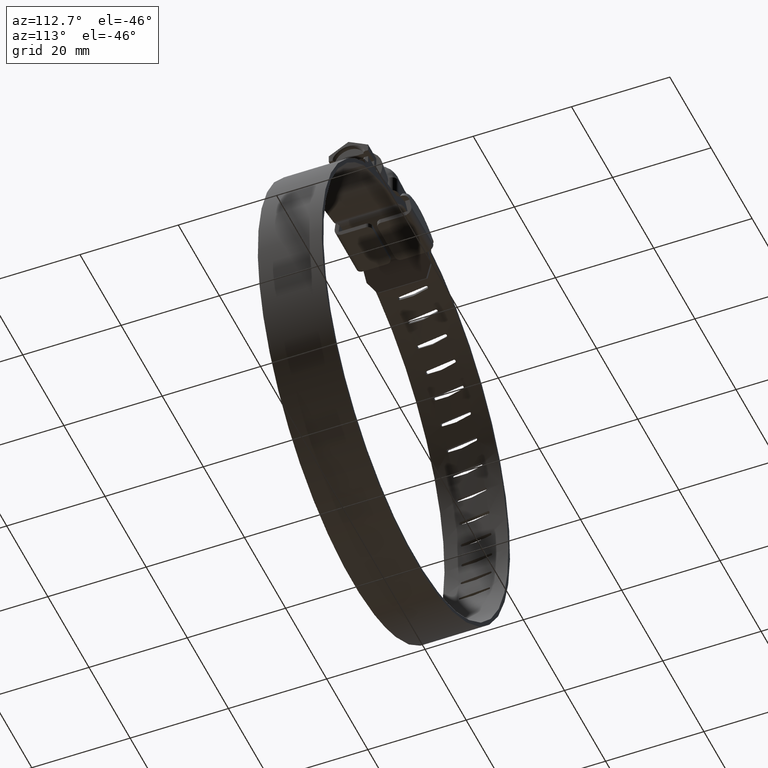
[diagram: clean part render]
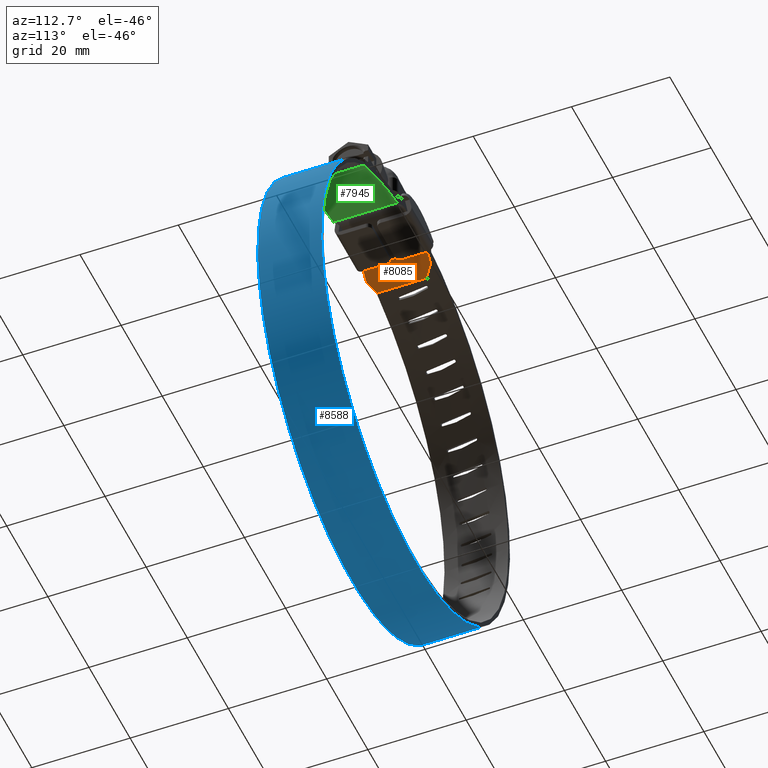
[diagram: same view with three faces highlighted in distinct colors, each labeled with its STEP entity id]
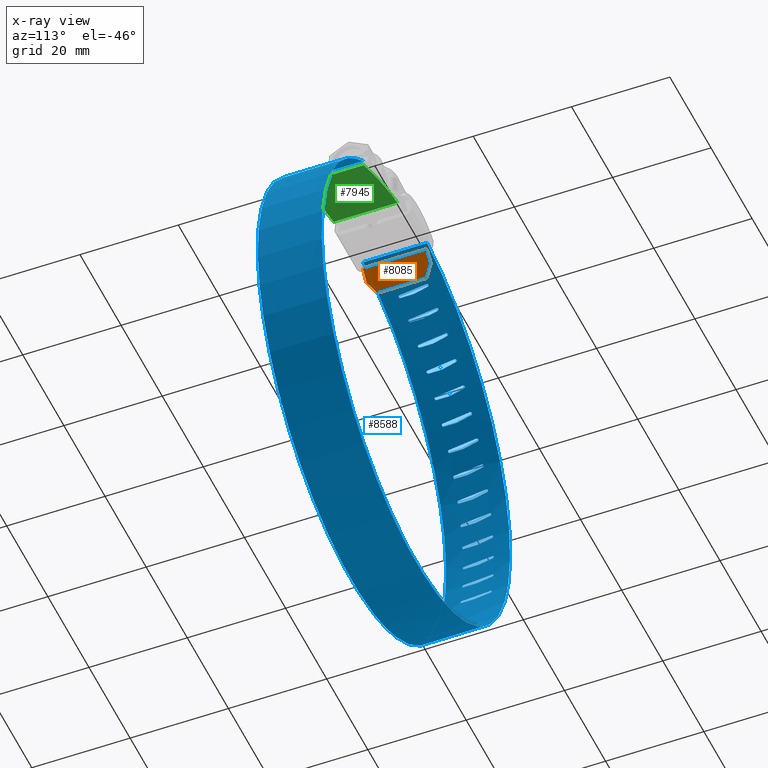
[diagram: x-ray of the same camera — body ghosted, the three highlighted faces saturated]
A machine part, auxiliary view with three faces highlighted in distinct colors.
The next image is the same camera in x-ray (body ghosted, the three faces saturated) — at least one of them is partly hidden behind the body in this view.
Their STEP definitions:

[orange] entity #8085 — the highlighted face is a freeform B-spline surface patch.
#7535=CARTESIAN_POINT('',(-7.114270144539910,6.499999999999880,8.217105914807199));
#7536=VERTEX_POINT('',#7535);
#7542=CARTESIAN_POINT('',(-8.670241379524860,5.0,6.389825554298911));
#7543=VERTEX_POINT('',#7542);
#7544=CARTESIAN_POINT('',(-8.670241379524860,5.0,6.389825554298911));
#7545=CARTESIAN_POINT('',(-7.114270144539910,6.499999999999880,8.217105914807199));
#7546=QUASI_UNIFORM_CURVE('',1,(#7544,#7545),.UNSPECIFIED.,.F.,.U.);
#7547=EDGE_CURVE('',#7543,#7536,#7546,.T.);
#7571=CARTESIAN_POINT('',(-8.670241379524899,-5.0,6.389825554298911));
#7572=VERTEX_POINT('',#7571);
#7578=CARTESIAN_POINT('',(-7.114270144539490,-6.500000000000119,8.217105914807698));
#7579=VERTEX_POINT('',#7578);
#7580=CARTESIAN_POINT('',(-7.114270144539490,-6.500000000000119,8.217105914807698));
#7581=CARTESIAN_POINT('',(-8.670241379524899,-5.0,6.389825554298911));
#7582=QUASI_UNIFORM_CURVE('',1,(#7580,#7581),.UNSPECIFIED.,.F.,.U.);
#7583=EDGE_CURVE('',#7579,#7572,#7582,.T.);
#8037=CARTESIAN_POINT('',(-5.275000379524901,-6.500000000000000,10.377082554298900));
#8038=VERTEX_POINT('',#8037);
#8044=CARTESIAN_POINT('',(-5.275000379524901,6.499999999999840,10.377082554298900));
#8045=VERTEX_POINT('',#8044);
#8046=CARTESIAN_POINT('',(-5.275000379524901,6.499999999999840,10.377082554298900));
#8047=CARTESIAN_POINT('',(-5.275000379524901,-6.500000000000000,10.377082554298900));
#8048=QUASI_UNIFORM_CURVE('',1,(#8046,#8047),.UNSPECIFIED.,.F.,.U.);
#8049=EDGE_CURVE('',#8045,#8038,#8048,.T.);
#8060=CARTESIAN_POINT('',(-5.105408034411355,-7.149349974803596,10.576246108579859));
#8061=CARTESIAN_POINT('',(-8.839833754994270,-7.149349974803596,6.190661964369101));
#8062=CARTESIAN_POINT('',(-5.105408034411355,7.149350323490531,10.576246108579859));
#8063=CARTESIAN_POINT('',(-8.839833754994270,7.149350323490531,6.190661964369101));
#8064=B_SPLINE_SURFACE_WITH_KNOTS('',1,1,((#8060,#8062),(#8061,#8063)),.UNSPECIFIED.,.F.,.F.,.U.,(2,2),(2,2),(0.0,5.760146156869983),(0.0,14.298700298294129),.UNSPECIFIED.);
#8065=CARTESIAN_POINT('',(-8.670241379524860,5.0,6.389825554298911));
#8066=CARTESIAN_POINT('',(-8.670241379524899,-5.0,6.389825554298911));
#8067=QUASI_UNIFORM_CURVE('',1,(#8065,#8066),.UNSPECIFIED.,.F.,.U.);
#8068=EDGE_CURVE('',#7543,#7572,#8067,.T.);
#8069=ORIENTED_EDGE('',*,*,#8068,.F.);
#8070=ORIENTED_EDGE('',*,*,#7547,.T.);
#8071=CARTESIAN_POINT('',(-7.114270144539910,6.499999999999880,8.217105914807199));
#8072=CARTESIAN_POINT('',(-5.275000379524901,6.499999999999840,10.377082554298900));
#8073=QUASI_UNIFORM_CURVE('',1,(#8071,#8072),.UNSPECIFIED.,.F.,.U.);
#8074=EDGE_CURVE('',#7536,#8045,#8073,.T.);
#8075=ORIENTED_EDGE('',*,*,#8074,.T.);
#8076=ORIENTED_EDGE('',*,*,#8049,.T.);
#8077=CARTESIAN_POINT('',(-7.114270144539490,-6.500000000000119,8.217105914807698));
#8078=CARTESIAN_POINT('',(-5.275000379524901,-6.500000000000000,10.377082554298900));
#8079=QUASI_UNIFORM_CURVE('',1,(#8077,#8078),.UNSPECIFIED.,.F.,.U.);
#8080=EDGE_CURVE('',#7579,#8038,#8079,.T.);
#8081=ORIENTED_EDGE('',*,*,#8080,.F.);
#8082=ORIENTED_EDGE('',*,*,#7583,.T.);
#8083=EDGE_LOOP('',(#8069,#8070,#8075,#8076,#8081,#8082));
#8084=FACE_OUTER_BOUND('',#8083,.T.);
#8085=ADVANCED_FACE('',(#8084),#8064,.T.);

[blue] entity #8588 — the highlighted face is a freeform B-spline surface patch.
#3586=CARTESIAN_POINT('',(-44.557706290091303,-2.794078000000000,-43.926794284235349));
#3587=VERTEX_POINT('',#3586);
#3588=CARTESIAN_POINT('',(-44.626148681450132,-3.094077998481925,-43.634705526447839));
#3589=VERTEX_POINT('',#3588);
#3590=CARTESIAN_POINT('',(-44.557706290091303,-2.794078000000000,-43.926794284235349));
#3591=CARTESIAN_POINT('',(-44.557839726433571,-2.862892154006302,-43.927218198110737));
#3592=CARTESIAN_POINT('',(-44.567817137593352,-2.980211349572047,-43.885709375097932));
#3593=CARTESIAN_POINT('',(-44.597378469623990,-3.076525174988309,-43.759067446702467));
#3594=CARTESIAN_POINT('',(-44.617320120407179,-3.094114360650463,-43.672946754939481));
#3595=CARTESIAN_POINT('',(-44.626148681450132,-3.094077998481925,-43.634705526447839));
#3596=B_SPLINE_CURVE_WITH_KNOTS('',3,(#3590,#3591,#3592,#3593,#3594,#3595),.UNSPECIFIED.,.F.,.U.,(4,1,1,4),(0.000001357139979,0.206270349226600,0.353572061855364,0.471429004787711),.UNSPECIFIED.);
#3597=EDGE_CURVE('',#3587,#3589,#3596,.T.);
#3599=CARTESIAN_POINT('',(-44.692676922697551,-2.794078000000000,-43.342172245364203));
#3600=VERTEX_POINT('',#3599);
#3601=CARTESIAN_POINT('',(-44.626148681450132,-3.094077998481925,-43.634705526447839));
#3602=CARTESIAN_POINT('',(-44.634979361459713,-3.094109047666486,-43.596456101009402));
#3603=CARTESIAN_POINT('',(-44.654802867806822,-3.076523191563954,-43.510335022500108));
#3604=CARTESIAN_POINT('',(-44.683758945127487,-2.980216641159307,-43.383510309985247));
#3605=CARTESIAN_POINT('',(-44.692979739401068,-2.862890658802643,-43.341862470521527));
#3606=CARTESIAN_POINT('',(-44.692676922697551,-2.794078000000000,-43.342172245364203));
#3607=B_SPLINE_CURVE_WITH_KNOTS('',3,(#3601,#3602,#3603,#3604,#3605,#3606),.UNSPECIFIED.,.F.,.U.,(4,1,1,4),(0.000001314890863,0.117858600978851,0.265160775048267,0.471430436875556),.UNSPECIFIED.);
#3608=EDGE_CURVE('',#3589,#3600,#3607,.T.);
#3652=CARTESIAN_POINT('',(-44.557706290091247,-0.234600999999998,-43.926794284235200));
#3653=VERTEX_POINT('',#3652);
#3654=CARTESIAN_POINT('',(-44.557706290091247,-0.234600999999998,-43.926794284235200));
#3655=CARTESIAN_POINT('',(-44.557706290091303,-2.794078000000000,-43.926794284235349));
#3656=QUASI_UNIFORM_CURVE('',1,(#3654,#3655),.UNSPECIFIED.,.F.,.U.);
#3657=EDGE_CURVE('',#3653,#3587,#3656,.T.);
#3689=CARTESIAN_POINT('',(-44.564472461432352,0.060369000000009,-43.898297983264449));
#3690=VERTEX_POINT('',#3689);
#3691=CARTESIAN_POINT('',(-44.564472461432352,0.060369000000009,-43.898297983264449));
#3692=CARTESIAN_POINT('',(-44.557706290091247,-0.234600999999998,-43.926794284235200));
#3693=QUASI_UNIFORM_CURVE('',1,(#3691,#3692),.UNSPECIFIED.,.F.,.U.);
#3694=EDGE_CURVE('',#3690,#3653,#3693,.T.);
#3717=CARTESIAN_POINT('',(-44.692676922697302,2.905922000000000,-43.342172245364146));
#3718=VERTEX_POINT('',#3717);
#3719=CARTESIAN_POINT('',(-44.692676922697302,2.905922000000000,-43.342172245364146));
#3720=CARTESIAN_POINT('',(-44.564472461432352,0.060369000000009,-43.898297983264449));
#3721=QUASI_UNIFORM_CURVE('',1,(#3719,#3720),.UNSPECIFIED.,.F.,.U.);
#3722=EDGE_CURVE('',#3718,#3690,#3721,.T.);
#3758=CARTESIAN_POINT('',(-44.819987929631452,2.905922000000000,-42.755781842569412));
#3759=VERTEX_POINT('',#3758);
#3760=CARTESIAN_POINT('',(-44.757292124609030,3.205921998326942,-43.049188493172558));
#3761=VERTEX_POINT('',#3760);
#3762=CARTESIAN_POINT('',(-44.819987929631452,2.905922000000000,-42.755781842569412));
#3763=CARTESIAN_POINT('',(-44.820121197951352,2.945172195160188,-42.755774007936431));
#3764=CARTESIAN_POINT('',(-44.816672679529972,3.033572483954100,-42.773022610363292));
#3765=CARTESIAN_POINT('',(-44.796651421709697,3.163630799676141,-42.867247888536177));
#3766=CARTESIAN_POINT('',(-44.771894311573568,3.206299801759661,-42.981937121857527));
#3767=CARTESIAN_POINT('',(-44.757292124609030,3.205921998326942,-43.049188493172558));
#3768=B_SPLINE_CURVE_WITH_KNOTS('',3,(#3762,#3763,#3764,#3765,#3766,#3767),.UNSPECIFIED.,.F.,.U.,(4,1,1,4),(0.000001542582520,0.117865407427241,0.265175667019685,0.471456950815699),.UNSPECIFIED.);
#3769=EDGE_CURVE('',#3759,#3761,#3768,.T.);
#3771=CARTESIAN_POINT('',(-44.757292124609030,3.205921998326942,-43.049188493172558));
#3772=CARTESIAN_POINT('',(-44.742693566349679,3.206300864167828,-43.116434831477903));
#3773=CARTESIAN_POINT('',(-44.717659583102510,3.163645923422541,-43.231081989773038));
#3774=CARTESIAN_POINT('',(-44.696811521865577,3.033559740623665,-43.325099050308602));
#3775=CARTESIAN_POINT('',(-44.692796516076903,2.945178067281939,-43.342227487728231));
#3776=CARTESIAN_POINT('',(-44.692676922697302,2.905922000000000,-43.342172245364146));
#3777=B_SPLINE_CURVE_WITH_KNOTS('',3,(#3771,#3772,#3773,#3774,#3775,#3776),.UNSPECIFIED.,.F.,.U.,(4,1,1,4),(0.000001587816704,0.206281199230373,0.353590416763379,0.471453546009751),.UNSPECIFIED.);
#3778=EDGE_CURVE('',#3761,#3718,#3777,.T.);
#3816=CARTESIAN_POINT('',(-44.692676922697551,-2.794078000000000,-43.342172245364203));
#3817=CARTESIAN_POINT('',(-44.819987929631452,2.905922000000000,-42.755781842569412));
#3818=QUASI_UNIFORM_CURVE('',1,(#3816,#3817),.UNSPECIFIED.,.F.,.U.);
#3819=EDGE_CURVE('',#3600,#3759,#3818,.T.);
#3849=CARTESIAN_POINT('',(-45.470653798497203,-2.794078000000000,-38.814613520214799));
#3850=VERTEX_POINT('',#3849);
#3851=CARTESIAN_POINT('',(-45.505590846199567,-3.094077998481925,-38.516654452457558));
#3852=VERTEX_POINT('',#3851);
#3853=CARTESIAN_POINT('',(-45.470653798497203,-2.794078000000000,-38.814613520214799));
#3854=CARTESIAN_POINT('',(-45.470777805968112,-2.833332167336461,-38.814660804299493));
#3855=CARTESIAN_POINT('',(-45.473056689368413,-2.921709641239535,-38.797216198282698));
#3856=CARTESIAN_POINT('',(-45.484381030186533,-3.051786938809109,-38.701587072039828));
#3857=CARTESIAN_POINT('',(-45.497802534778053,-3.094450656039216,-38.585022365785271));
#3858=CARTESIAN_POINT('',(-45.505590846199567,-3.094077998481925,-38.516654452457558));
#3859=B_SPLINE_CURVE_WITH_KNOTS('',3,(#3853,#3854,#3855,#3856,#3857,#3858),.UNSPECIFIED.,.F.,.U.,(4,1,1,4),(0.000001357140121,0.117858269252610,0.265159964468981,0.471429004787856),.UNSPECIFIED.);
#3860=EDGE_CURVE('',#3850,#3852,#3859,.T.);
#3862=CARTESIAN_POINT('',(-45.538575726757799,-2.794078000000000,-38.218470406808798));
#3863=VERTEX_POINT('',#3862);
#3864=CARTESIAN_POINT('',(-45.505590846199567,-3.094077998481925,-38.516654452457558));
#3865=CARTESIAN_POINT('',(-45.513381636728717,-3.094451948419861,-38.448286380233910));
#3866=CARTESIAN_POINT('',(-45.526525452265993,-3.051786861260209,-38.331690224483317));
#3867=CARTESIAN_POINT('',(-45.537003316122082,-2.921709875964219,-38.235963865204212));
#3868=CARTESIAN_POINT('',(-45.538707099207592,-2.833332261079000,-38.218453052015207));
#3869=CARTESIAN_POINT('',(-45.538575726757799,-2.794078000000000,-38.218470406808798));
#3870=B_SPLINE_CURVE_WITH_KNOTS('',3,(#3864,#3865,#3866,#3867,#3868,#3869),.UNSPECIFIED.,.F.,.U.,(4,1,1,4),(0.000001314890403,0.206270965495532,0.353573143615438,0.471430436875431),.UNSPECIFIED.);
#3871=EDGE_CURVE('',#3852,#3863,#3870,.T.);
#3915=CARTESIAN_POINT('',(-45.470653798496997,-0.234600999999998,-38.814613520214600));
#3916=VERTEX_POINT('',#3915);
#3917=CARTESIAN_POINT('',(-45.470653798496997,-0.234600999999998,-38.814613520214600));
#3918=CARTESIAN_POINT('',(-45.470653798497203,-2.794078000000000,-38.814613520214799));
#3919=QUASI_UNIFORM_CURVE('',1,(#3917,#3918),.UNSPECIFIED.,.F.,.U.);
#3920=EDGE_CURVE('',#3916,#3850,#3919,.T.);
#3952=CARTESIAN_POINT('',(-45.474150603061886,0.060369000000009,-38.785534445238497));
#3953=VERTEX_POINT('',#3952);
#3954=CARTESIAN_POINT('',(-45.474150603061886,0.060369000000009,-38.785534445238497));
#3955=CARTESIAN_POINT('',(-45.470653798496997,-0.234600999999998,-38.814613520214600));
#3956=QUASI_UNIFORM_CURVE('',1,(#3954,#3955),.UNSPECIFIED.,.F.,.U.);
#3957=EDGE_CURVE('',#3953,#3916,#3956,.T.);
#3980=CARTESIAN_POINT('',(-45.538575726757500,2.905922000000000,-38.218470406808798));
#3981=VERTEX_POINT('',#3980);
#3982=CARTESIAN_POINT('',(-45.538575726757500,2.905922000000000,-38.218470406808798));
#3983=CARTESIAN_POINT('',(-45.474150603061886,0.060369000000009,-38.785534445238497));
#3984=QUASI_UNIFORM_CURVE('',1,(#3982,#3983),.UNSPECIFIED.,.F.,.U.);
#3985=EDGE_CURVE('',#3981,#3953,#3984,.T.);
#4021=CARTESIAN_POINT('',(-45.598687082046098,2.905922000000000,-37.621437391020102));
#4022=VERTEX_POINT('',#4021);
#4023=CARTESIAN_POINT('',(-45.569608870496140,3.205921998326942,-37.920055347945997));
#4024=VERTEX_POINT('',#4023);
#4025=CARTESIAN_POINT('',(-45.598687082046098,2.905922000000000,-37.621437391020102));
#4026=CARTESIAN_POINT('',(-45.598817880303713,2.945183377289395,-37.621422101564100));
#4027=CARTESIAN_POINT('',(-45.597345592672063,3.033564883224150,-37.638935036306407));
#4028=CARTESIAN_POINT('',(-45.588118321416381,3.163636269059645,-37.734834602258573));
#4029=CARTESIAN_POINT('',(-45.576504327131452,3.206297856576922,-37.851581154046983));
#4030=CARTESIAN_POINT('',(-45.569608870496140,3.205921998326942,-37.920055347945997));
#4031=B_SPLINE_CURVE_WITH_KNOTS('',3,(#4025,#4026,#4027,#4028,#4029,#4030),.UNSPECIFIED.,.F.,.U.,(4,1,1,4),(0.000001542582374,0.117865407427106,0.265175667019610,0.471456950815678),.UNSPECIFIED.);
#4032=EDGE_CURVE('',#4022,#4024,#4031,.T.);
#4034=CARTESIAN_POINT('',(-45.569608870496140,3.205921998326942,-37.920055347945997));
#4035=CARTESIAN_POINT('',(-45.565675533749953,3.205953653764115,-37.959122742895943));
#4036=CARTESIAN_POINT('',(-45.556765076892873,3.188388673005786,-38.047048080698659));
#4037=CARTESIAN_POINT('',(-45.543419451214781,3.092061423917047,-38.176448572984469));
#4038=CARTESIAN_POINT('',(-45.538763135022570,2.974741295688775,-38.218859379294862));
#4039=CARTESIAN_POINT('',(-45.538575726757500,2.905922000000000,-38.218470406808798));
#4040=B_SPLINE_CURVE_WITH_KNOTS('',3,(#4034,#4035,#4036,#4037,#4038,#4039),.UNSPECIFIED.,.F.,.U.,(4,1,1,4),(0.000001587816432,0.117864598625198,0.265173748986948,0.471453546009797),.UNSPECIFIED.);
#4041=EDGE_CURVE('',#4024,#3981,#4040,.T.);
#4079=CARTESIAN_POINT('',(-45.538575726757799,-2.794078000000000,-38.218470406808798));
#4080=CARTESIAN_POINT('',(-45.598687082046098,2.905922000000000,-37.621437391020102));
#4081=QUASI_UNIFORM_CURVE('',1,(#4079,#4080),.UNSPECIFIED.,.F.,.U.);
#4082=EDGE_CURVE('',#3863,#4022,#4081,.T.);
#4112=CARTESIAN_POINT('',(-9.815595437436702,-2.794078000000000,11.403879534001140));
#4113=VERTEX_POINT('',#4112);
#4114=CARTESIAN_POINT('',(-9.522356681750138,-3.094077998481925,11.467213849535730));
#4115=VERTEX_POINT('',#4114);
#4116=CARTESIAN_POINT('',(-9.815595437436702,-2.794078000000000,11.403879534001140));
#4117=CARTESIAN_POINT('',(-9.815654259867538,-2.833332984292420,11.403998468861079));
#4118=CARTESIAN_POINT('',(-9.798509310630575,-2.921706977287272,11.407938644072310));
#4119=CARTESIAN_POINT('',(-9.704405890680494,-3.051788566614633,11.428376497311559));
#4120=CARTESIAN_POINT('',(-9.589662059485459,-3.094450108833279,11.452908895771991));
#4121=CARTESIAN_POINT('',(-9.522356681750138,-3.094077998481925,11.467213849535730));
#4122=B_SPLINE_CURVE_WITH_KNOTS('',3,(#4116,#4117,#4118,#4119,#4120,#4121),.UNSPECIFIED.,.F.,.U.,(4,1,1,4),(0.000001357139619,0.117858269252255,0.265159964468806,0.471429004787766),.UNSPECIFIED.);
#4123=EDGE_CURVE('',#4113,#4115,#4122,.T.);
#4125=CARTESIAN_POINT('',(-9.228706876996451,-2.794078000000000,11.528626548491740));
#4126=VERTEX_POINT('',#4125);
#4127=CARTESIAN_POINT('',(-9.522356681750138,-3.094077998481925,11.467213849535730));
#4128=CARTESIAN_POINT('',(-9.455051313088767,-3.094451815589931,11.481521298904671));
#4129=CARTESIAN_POINT('',(-9.340249829386286,-3.051787005387602,11.505780252384071));
#4130=CARTESIAN_POINT('',(-9.245969105891374,-2.921709546931663,11.525384698780041));
#4131=CARTESIAN_POINT('',(-9.228702200926318,-2.833332364234619,11.528758978298590));
#4132=CARTESIAN_POINT('',(-9.228706876996451,-2.794078000000000,11.528626548491740));
#4133=B_SPLINE_CURVE_WITH_KNOTS('',3,(#4127,#4128,#4129,#4130,#4131,#4132),.UNSPECIFIED.,.F.,.U.,(4,1,1,4),(0.000001314890471,0.206270965495571,0.353573143615450,0.471430436875450),.UNSPECIFIED.);
#4134=EDGE_CURVE('',#4115,#4126,#4133,.T.);
#4178=CARTESIAN_POINT('',(-9.815595437436510,-0.234600999999998,11.403879534001121));
#4179=VERTEX_POINT('',#4178);
#4180=CARTESIAN_POINT('',(-9.815595437436510,-0.234600999999998,11.403879534001121));
#4181=CARTESIAN_POINT('',(-9.815595437436702,-2.794078000000000,11.403879534001140));
#4182=QUASI_UNIFORM_CURVE('',1,(#4180,#4181),.UNSPECIFIED.,.F.,.U.);
#4183=EDGE_CURVE('',#4179,#4113,#4182,.T.);
#4215=CARTESIAN_POINT('',(-9.786985390618222,0.060369000000009,11.410147345795099));
#4216=VERTEX_POINT('',#4215);
#4217=CARTESIAN_POINT('',(-9.786985390618222,0.060369000000009,11.410147345795099));
#4218=CARTESIAN_POINT('',(-9.815595437436510,-0.234600999999998,11.403879534001121));
#4219=QUASI_UNIFORM_CURVE('',1,(#4217,#4218),.UNSPECIFIED.,.F.,.U.);
#4220=EDGE_CURVE('',#4216,#4179,#4219,.T.);
#4243=CARTESIAN_POINT('',(-9.228706876996371,2.905922000000000,11.528626548491520));
#4244=VERTEX_POINT('',#4243);
#4245=CARTESIAN_POINT('',(-9.228706876996371,2.905922000000000,11.528626548491520));
#4246=CARTESIAN_POINT('',(-9.786985390618222,0.060369000000009,11.410147345795099));
#4247=QUASI_UNIFORM_CURVE('',1,(#4245,#4246),.UNSPECIFIED.,.F.,.U.);
#4248=EDGE_CURVE('',#4244,#4216,#4247,.T.);
#4284=CARTESIAN_POINT('',(-8.640183900863251,2.905922000000000,11.645684241702179));
#4285=VERTEX_POINT('',#4284);
#4286=CARTESIAN_POINT('',(-8.934640056883641,3.205921998326942,11.588118637672331));
#4287=VERTEX_POINT('',#4286);
#4288=CARTESIAN_POINT('',(-8.640183900863251,2.905922000000000,11.645684241702179));
#4289=CARTESIAN_POINT('',(-8.640178654285601,2.945179612886787,11.645816400622820));
#4290=CARTESIAN_POINT('',(-8.657485050190369,3.033556797416161,11.642669313025490));
#4291=CARTESIAN_POINT('',(-8.752033325341881,3.163650916917425,11.624298082939310));
#4292=CARTESIAN_POINT('',(-8.867146938117090,3.206292263853784,11.601544309719920));
#4293=CARTESIAN_POINT('',(-8.934640056883641,3.205921998326942,11.588118637672331));
#4294=B_SPLINE_CURVE_WITH_KNOTS('',3,(#4288,#4289,#4290,#4291,#4292,#4293),.UNSPECIFIED.,.F.,.U.,(4,1,1,4),(0.000001542582610,0.117865407427318,0.265175667019724,0.471456950815752),.UNSPECIFIED.);
#4295=EDGE_CURVE('',#4285,#4287,#4294,.T.);
#4297=CARTESIAN_POINT('',(-8.934640056883641,3.205921998326942,11.588118637672331));
#4298=CARTESIAN_POINT('',(-9.002129704505382,3.206300737314314,11.574696157239851));
#4299=CARTESIAN_POINT('',(-9.117198184685652,3.163646063825364,11.551666482561661));
#4300=CARTESIAN_POINT('',(-9.211564110072091,3.033559413233235,11.532462551191610));
#4301=CARTESIAN_POINT('',(-9.228760015776667,2.945178169982607,11.528747089698429));
#4302=CARTESIAN_POINT('',(-9.228706876996371,2.905922000000000,11.528626548491520));
#4303=B_SPLINE_CURVE_WITH_KNOTS('',3,(#4297,#4298,#4299,#4300,#4301,#4302),.UNSPECIFIED.,.F.,.U.,(4,1,1,4),(0.000001587816594,0.206281199230282,0.353590416763316,0.471453546009706),.UNSPECIFIED.);
#4304=EDGE_CURVE('',#4287,#4244,#4303,.T.);
#4342=CARTESIAN_POINT('',(-9.228706876996451,-2.794078000000000,11.528626548491740));
#4343=CARTESIAN_POINT('',(-8.640183900863251,2.905922000000000,11.645684241702179));
#4344=QUASI_UNIFORM_CURVE('',1,(#4342,#4343),.UNSPECIFIED.,.F.,.U.);
#4345=EDGE_CURVE('',#4126,#4285,#4344,.T.);
#4375=CARTESIAN_POINT('',(-14.816738594353939,-2.794078000000000,10.005154242478200));
#4376=VERTEX_POINT('',#4375);
#4377=CARTESIAN_POINT('',(-14.532554467770829,-3.094077998481925,10.101277005436749));
#4378=VERTEX_POINT('',#4377);
#4379=CARTESIAN_POINT('',(-14.816738594353939,-2.794078000000000,10.005154242478200));
#4380=CARTESIAN_POINT('',(-14.817165858740990,-2.862895477523781,10.005248950814940));
#4381=CARTESIAN_POINT('',(-14.776823090641830,-2.980204414841385,10.019152592000690));
#4382=CARTESIAN_POINT('',(-14.653573423746820,-3.076534568727518,10.060724040900791));
#4383=CARTESIAN_POINT('',(-14.569788305538300,-3.094105563737815,10.088818832773470));
#4384=CARTESIAN_POINT('',(-14.532554467770829,-3.094077998481925,10.101277005436749));
#4385=B_SPLINE_CURVE_WITH_KNOTS('',3,(#4379,#4380,#4381,#4382,#4383,#4384),.UNSPECIFIED.,.F.,.U.,(4,1,1,4),(0.000001357139850,0.206270349226441,0.353572061855235,0.471429004787551),.UNSPECIFIED.);
#4386=EDGE_CURVE('',#4376,#4378,#4385,.T.);
#4388=CARTESIAN_POINT('',(-14.247744401230261,-2.794078000000000,10.195537036321300));
#4389=VERTEX_POINT('',#4388);
#4390=CARTESIAN_POINT('',(-14.532554467770829,-3.094077998481925,10.101277005436749));
#4391=CARTESIAN_POINT('',(-14.495328547016481,-3.094110323206106,10.113732735903520));
#4392=CARTESIAN_POINT('',(-14.411499246484301,-3.076519138405804,10.141720874294791));
#4393=CARTESIAN_POINT('',(-14.288043607008410,-2.980222168002039,10.182695980805679));
#4394=CARTESIAN_POINT('',(-14.247461554565920,-2.862888128565592,10.195869319111710));
#4395=CARTESIAN_POINT('',(-14.247744401230261,-2.794078000000000,10.195537036321300));
#4396=B_SPLINE_CURVE_WITH_KNOTS('',3,(#4390,#4391,#4392,#4393,#4394,#4395),.UNSPECIFIED.,.F.,.U.,(4,1,1,4),(0.000001314890456,0.117858600978673,0.265160775048251,0.471430436875710),.UNSPECIFIED.);
#4397=EDGE_CURVE('',#4378,#4389,#4396,.T.);
#4441=CARTESIAN_POINT('',(-14.816738594353721,-0.234600999999998,10.005154242478040));
#4442=VERTEX_POINT('',#4441);
#4443=CARTESIAN_POINT('',(-14.816738594353721,-0.234600999999998,10.005154242478040));
#4444=CARTESIAN_POINT('',(-14.816738594353939,-2.794078000000000,10.005154242478200));
#4445=QUASI_UNIFORM_CURVE('',1,(#4443,#4444),.UNSPECIFIED.,.F.,.U.);
#4446=EDGE_CURVE('',#4442,#4376,#4445,.T.);
#4478=CARTESIAN_POINT('',(-14.789021993483940,0.060369000000009,10.014620513119260));
#4479=VERTEX_POINT('',#4478);
#4480=CARTESIAN_POINT('',(-14.789021993483940,0.060369000000009,10.014620513119260));
#4481=CARTESIAN_POINT('',(-14.816738594353721,-0.234600999999998,10.005154242478040));
#4482=QUASI_UNIFORM_CURVE('',1,(#4480,#4481),.UNSPECIFIED.,.F.,.U.);
#4483=EDGE_CURVE('',#4479,#4442,#4482,.T.);
#4506=CARTESIAN_POINT('',(-14.247744401230319,2.905922000000000,10.195537036321481));
#4507=VERTEX_POINT('',#4506);
#4508=CARTESIAN_POINT('',(-14.247744401230319,2.905922000000000,10.195537036321481));
#4509=CARTESIAN_POINT('',(-14.789021993483940,0.060369000000009,10.014620513119260));
#4510=QUASI_UNIFORM_CURVE('',1,(#4508,#4509),.UNSPECIFIED.,.F.,.U.);
#4511=EDGE_CURVE('',#4507,#4479,#4510,.T.);
#4547=CARTESIAN_POINT('',(-13.676255842792900,2.905922000000000,10.378464958060000));
#4548=VERTEX_POINT('',#4547);
#4549=CARTESIAN_POINT('',(-13.962302580767490,3.205921998326942,10.287936010865449));
#4550=VERTEX_POINT('',#4549);
#4551=CARTESIAN_POINT('',(-13.676255842792900,2.905922000000000,10.378464958060000));
#4552=CARTESIAN_POINT('',(-13.676265105966280,2.945187693945669,10.378597044343930));
#4553=CARTESIAN_POINT('',(-13.691241807378420,3.023748261251007,10.374073351158049));
#4554=CARTESIAN_POINT('',(-13.749601182462641,3.115238538020820,10.355707757510579));
#4555=CARTESIAN_POINT('',(-13.840804154553449,3.186204462496803,10.326758656495789));
#4556=CARTESIAN_POINT('',(-13.915532259447700,3.206029316795662,10.302907104191460));
#4557=CARTESIAN_POINT('',(-13.962302580767490,3.205921998326942,10.287936010865449));
#4558=B_SPLINE_CURVE_WITH_KNOTS('',3,(#4551,#4552,#4553,#4554,#4555,#4556,#4557),.UNSPECIFIED.,.F.,.U.,(4,1,1,1,4),(0.000001542582663,0.117865407427442,0.235729135631774,0.324114086693030,0.471456950816151),.UNSPECIFIED.);
#4559=EDGE_CURVE('',#4548,#4550,#4558,.T.);
#4561=CARTESIAN_POINT('',(-13.962302580767490,3.205921998326942,10.287936010865449));
#4562=CARTESIAN_POINT('',(-14.027840120468570,3.206300864167821,10.266959385573401));
#4563=CARTESIAN_POINT('',(-14.139560065026281,3.163645923422581,10.231052210658209));
#4564=CARTESIAN_POINT('',(-14.231146091546989,3.033559740623570,10.201288993843290));
#4565=CARTESIAN_POINT('',(-14.247810851786900,2.945178067281895,10.195650784370841));
#4566=CARTESIAN_POINT('',(-14.247744401230319,2.905922000000000,10.195537036321481));
#4567=B_SPLINE_CURVE_WITH_KNOTS('',3,(#4561,#4562,#4563,#4564,#4565,#4566),.UNSPECIFIED.,.F.,.U.,(4,1,1,4),(0.000001587816696,0.206281199230153,0.353590416763028,0.471453546009324),.UNSPECIFIED.);
#4568=EDGE_CURVE('',#4550,#4507,#4567,.T.);
#4607=CARTESIAN_POINT('',(-14.247744401230261,-2.794078000000000,10.195537036321300));
#4608=CARTESIAN_POINT('',(-13.676255842792900,2.905922000000000,10.378464958060000));
#4609=QUASI_UNIFORM_CURVE('',1,(#4607,#4608),.UNSPECIFIED.,.F.,.U.);
#4610=EDGE_CURVE('',#4389,#4548,#4609,.T.);
#4640=CARTESIAN_POINT('',(-19.627393483097549,-2.794078000000000,8.049274681121400));
#4641=VERTEX_POINT('',#4640);
#4642=CARTESIAN_POINT('',(-19.355917538777419,-3.094077998481925,8.176950109518185));
#4643=VERTEX_POINT('',#4642);
#4644=CARTESIAN_POINT('',(-19.627393483097549,-2.794078000000000,8.049274681121400));
#4645=CARTESIAN_POINT('',(-19.627477671861531,-2.833332167336455,8.049377276879225));
#4646=CARTESIAN_POINT('',(-19.611657639634480,-2.921709641239499,8.057073650633509));
#4647=CARTESIAN_POINT('',(-19.524563543164081,-3.051786938809054,8.098156357955725));
#4648=CARTESIAN_POINT('',(-19.418281180763639,-3.094450656039169,8.147870812315462));
#4649=CARTESIAN_POINT('',(-19.355917538777419,-3.094077998481925,8.176950109518185));
#4650=B_SPLINE_CURVE_WITH_KNOTS('',3,(#4644,#4645,#4646,#4647,#4648,#4649),.UNSPECIFIED.,.F.,.U.,(4,1,1,4),(0.000001357139546,0.117858269252202,0.265159964468755,0.471429004787735),.UNSPECIFIED.);
#4651=EDGE_CURVE('',#4641,#4643,#4650,.T.);
#4653=CARTESIAN_POINT('',(-19.083608810875599,-2.794078000000000,8.302845638165771));
#4654=VERTEX_POINT('',#4653);
#4655=CARTESIAN_POINT('',(-19.355917538777419,-3.094077998481925,8.176950109518185));
#4656=CARTESIAN_POINT('',(-19.293549380444500,-3.094455562425675,8.206034223750072));
#4657=CARTESIAN_POINT('',(-19.187166043690670,-3.051773696034154,8.255487347946772));
#4658=CARTESIAN_POINT('',(-19.099690942397910,-2.921721640471521,8.295807685637112));
#4659=CARTESIAN_POINT('',(-19.083630551977841,-2.833325909720091,8.302977331133151));
#4660=CARTESIAN_POINT('',(-19.083608810875599,-2.794078000000000,8.302845638165771));
#4661=B_SPLINE_CURVE_WITH_KNOTS('',3,(#4655,#4656,#4657,#4658,#4659,#4660),.UNSPECIFIED.,.F.,.U.,(4,1,1,4),(0.000001314890686,0.206270965495635,0.353573143615495,0.471430436875466),.UNSPECIFIED.);
#4662=EDGE_CURVE('',#4643,#4654,#4661,.T.);
#4706=CARTESIAN_POINT('',(-19.627393483097450,-0.234600999999998,8.049274681121599));
#4707=VERTEX_POINT('',#4706);
#4708=CARTESIAN_POINT('',(-19.627393483097450,-0.234600999999998,8.049274681121599));
#4709=CARTESIAN_POINT('',(-19.627393483097549,-2.794078000000000,8.049274681121400));
#4710=QUASI_UNIFORM_CURVE('',1,(#4708,#4709),.UNSPECIFIED.,.F.,.U.);
#4711=EDGE_CURVE('',#4707,#4641,#4710,.T.);
#4743=CARTESIAN_POINT('',(-19.600926660797050,0.060369000000009,8.061817709501769));
#4744=VERTEX_POINT('',#4743);
#4745=CARTESIAN_POINT('',(-19.600926660797050,0.060369000000009,8.061817709501769));
#4746=CARTESIAN_POINT('',(-19.627393483097450,-0.234600999999998,8.049274681121599));
#4747=QUASI_UNIFORM_CURVE('',1,(#4745,#4746),.UNSPECIFIED.,.F.,.U.);
#4748=EDGE_CURVE('',#4744,#4707,#4747,.T.);
#4771=CARTESIAN_POINT('',(-19.083608810875749,2.905922000000000,8.302845638166080));
#4772=VERTEX_POINT('',#4771);
#4773=CARTESIAN_POINT('',(-19.083608810875749,2.905922000000000,8.302845638166080));
#4774=CARTESIAN_POINT('',(-19.600926660797050,0.060369000000009,8.061817709501769));
#4775=QUASI_UNIFORM_CURVE('',1,(#4773,#4774),.UNSPECIFIED.,.F.,.U.);
#4776=EDGE_CURVE('',#4772,#4744,#4775,.T.);
#4812=CARTESIAN_POINT('',(-18.536501891999801,2.905922000000000,8.549292014269581));
#4813=VERTEX_POINT('',#4812);
#4814=CARTESIAN_POINT('',(-18.810461712497279,3.205921998326941,8.426963590186885));
#4815=VERTEX_POINT('',#4814);
#4816=CARTESIAN_POINT('',(-18.536501891999801,2.905922000000000,8.549292014269581));
#4817=CARTESIAN_POINT('',(-18.536257694256069,2.974737675711277,8.549649248133418));
#4818=CARTESIAN_POINT('',(-18.575308443651171,3.092073382684414,8.532480242817179));
#4819=CARTESIAN_POINT('',(-18.694063111012071,3.188373842510772,8.479332733820080));
#4820=CARTESIAN_POINT('',(-18.774667927991619,3.205952762735065,8.443087145896140));
#4821=CARTESIAN_POINT('',(-18.810461712497279,3.205921998326941,8.426963590186885));
#4822=B_SPLINE_CURVE_WITH_KNOTS('',3,(#4816,#4817,#4818,#4819,#4820,#4821),.UNSPECIFIED.,.F.,.U.,(4,1,1,4),(0.000001542582443,0.206282662176512,0.353592981158880,0.471456950815719),.UNSPECIFIED.);
#4823=EDGE_CURVE('',#4813,#4815,#4822,.T.);
#4825=CARTESIAN_POINT('',(-18.810461712497279,3.205921998326941,8.426963590186885));
#4826=CARTESIAN_POINT('',(-18.873203315355870,3.206300884034174,8.398702759445062));
#4827=CARTESIAN_POINT('',(-18.980140333383080,3.163645959328761,8.350379329461633));
#4828=CARTESIAN_POINT('',(-19.067768535086579,3.033559464825129,8.310439513324416));
#4829=CARTESIAN_POINT('',(-19.083687670148858,2.945178124159172,8.302951151181352));
#4830=CARTESIAN_POINT('',(-19.083608810875749,2.905922000000000,8.302845638166080));
#4831=B_SPLINE_CURVE_WITH_KNOTS('',3,(#4825,#4826,#4827,#4828,#4829,#4830),.UNSPECIFIED.,.F.,.U.,(4,1,1,4),(0.000001587816515,0.206281199230311,0.353590416763397,0.471453546009830),.UNSPECIFIED.);
#4832=EDGE_CURVE('',#4815,#4772,#4831,.T.);
#4870=CARTESIAN_POINT('',(-19.083608810875599,-2.794078000000000,8.302845638165771));
#4871=CARTESIAN_POINT('',(-18.536501891999801,2.905922000000000,8.549292014269581));
#4872=QUASI_UNIFORM_CURVE('',1,(#4870,#4871),.UNSPECIFIED.,.F.,.U.);
#4873=EDGE_CURVE('',#4654,#4813,#4872,.T.);
#4903=CARTESIAN_POINT('',(-24.185712935837749,-2.794078000000000,5.561386202130210));
#4904=VERTEX_POINT('',#4903);
#4905=CARTESIAN_POINT('',(-23.930435346881762,-3.094077998481926,5.718972863804430));
#4906=VERTEX_POINT('',#4905);
#4907=CARTESIAN_POINT('',(-24.185712935837749,-2.794078000000000,5.561386202130210));
#4908=CARTESIAN_POINT('',(-24.186152692610250,-2.862896399713463,5.561381062650853));
#4909=CARTESIAN_POINT('',(-24.149965987533289,-2.980203816429248,5.584006902894729));
#4910=CARTESIAN_POINT('',(-24.039234293582950,-3.076533736482824,5.652233392791400));
#4911=CARTESIAN_POINT('',(-23.963908916142358,-3.094106388312477,5.698460343209089));
#4912=CARTESIAN_POINT('',(-23.930435346881762,-3.094077998481926,5.718972863804430));
#4913=B_SPLINE_CURVE_WITH_KNOTS('',3,(#4907,#4908,#4909,#4910,#4911,#4912),.UNSPECIFIED.,.F.,.U.,(4,1,1,4),(0.000001357139854,0.206270349226535,0.353572061855404,0.471429004787756),.UNSPECIFIED.);
#4914=EDGE_CURVE('',#4904,#4906,#4913,.T.);
#4916=CARTESIAN_POINT('',(-23.674128837225300,-2.794078000000000,5.874885340959820));
#4917=VERTEX_POINT('',#4916);
#4918=CARTESIAN_POINT('',(-23.930435346881762,-3.094077998481926,5.718972863804430));
#4919=CARTESIAN_POINT('',(-23.896965453765780,-3.094110323206106,5.739483364828893));
#4920=CARTESIAN_POINT('',(-23.821580654015609,-3.076519138405814,5.785611658585977));
#4921=CARTESIAN_POINT('',(-23.710506567992901,-2.980222168002076,5.853308052036331));
#4922=CARTESIAN_POINT('',(-23.673927987266691,-2.862888128565540,5.875272734019219));
#4923=CARTESIAN_POINT('',(-23.674128837225300,-2.794078000000000,5.874885340959820));
#4924=B_SPLINE_CURVE_WITH_KNOTS('',3,(#4918,#4919,#4920,#4921,#4922,#4923),.UNSPECIFIED.,.F.,.U.,(4,1,1,4),(0.000001314890316,0.117858600978564,0.265160775048134,0.471430436875533),.UNSPECIFIED.);
#4925=EDGE_CURVE('',#4906,#4917,#4924,.T.);
#4970=CARTESIAN_POINT('',(-24.185712935837550,-0.234600999999998,5.561386202130430));
#4971=VERTEX_POINT('',#4970);
#4972=CARTESIAN_POINT('',(-24.185712935837550,-0.234600999999998,5.561386202130430));
#4973=CARTESIAN_POINT('',(-24.185712935837749,-2.794078000000000,5.561386202130210));
#4974=QUASI_UNIFORM_CURVE('',1,(#4972,#4973),.UNSPECIFIED.,.F.,.U.);
#4975=EDGE_CURVE('',#4971,#4904,#4974,.T.);
#5007=CARTESIAN_POINT('',(-24.160836157213801,0.060369000000009,5.576844731456660));
#5008=VERTEX_POINT('',#5007);
#5009=CARTESIAN_POINT('',(-24.160836157213801,0.060369000000009,5.576844731456660));
#5010=CARTESIAN_POINT('',(-24.185712935837550,-0.234600999999998,5.561386202130430));
#5011=QUASI_UNIFORM_CURVE('',1,(#5009,#5010),.UNSPECIFIED.,.F.,.U.);
#5012=EDGE_CURVE('',#5008,#4971,#5011,.T.);
#5035=CARTESIAN_POINT('',(-23.674128837225251,2.905922000000000,5.874885340959811));
#5036=VERTEX_POINT('',#5035);
#5037=CARTESIAN_POINT('',(-23.674128837225251,2.905922000000000,5.874885340959811));
#5038=CARTESIAN_POINT('',(-24.160836157213801,0.060369000000009,5.576844731456660));
#5039=QUASI_UNIFORM_CURVE('',1,(#5037,#5038),.UNSPECIFIED.,.F.,.U.);
#5040=EDGE_CURVE('',#5036,#5008,#5039,.T.);
#5076=CARTESIAN_POINT('',(-23.158437322380799,2.905922000000000,6.181681785681420));
#5077=VERTEX_POINT('',#5076);
#5078=CARTESIAN_POINT('',(-23.416788118872731,3.205921998326942,6.029126574239489));
#5079=VERTEX_POINT('',#5078);
#5080=CARTESIAN_POINT('',(-23.158437322380799,2.905922000000000,6.181681785681420));
#5081=CARTESIAN_POINT('',(-23.158471188530410,2.945171304427190,6.181811239166208));
#5082=CARTESIAN_POINT('',(-23.173737514644149,3.033574947420429,6.173065915623231));
#5083=CARTESIAN_POINT('',(-23.256736894826741,3.163627320385577,6.124183426568494));
#5084=CARTESIAN_POINT('',(-23.357646471480589,3.206304120699984,6.064312722581862));
#5085=CARTESIAN_POINT('',(-23.416788118872731,3.205921998326942,6.029126574239489));
#5086=B_SPLINE_CURVE_WITH_KNOTS('',3,(#5080,#5081,#5082,#5083,#5084,#5085),.UNSPECIFIED.,.F.,.U.,(4,1,1,4),(0.000001542582546,0.117865407427383,0.265175667019958,0.471456950816181),.UNSPECIFIED.);
#5087=EDGE_CURVE('',#5077,#5079,#5086,.T.);
#5089=CARTESIAN_POINT('',(-23.416788118872731,3.205921998326942,6.029126574239489));
#5090=CARTESIAN_POINT('',(-23.450525650705270,3.205957567906563,6.009055495561626));
#5091=CARTESIAN_POINT('',(-23.526454039355951,3.188372647387074,5.963816968412689));
#5092=CARTESIAN_POINT('',(-23.638095704411839,3.092079192743063,5.897031809680387));
#5093=CARTESIAN_POINT('',(-23.674560353182720,2.974733749940557,5.874890902795645));
#5094=CARTESIAN_POINT('',(-23.674128837225251,2.905922000000000,5.874885340959811));
#5095=B_SPLINE_CURVE_WITH_KNOTS('',3,(#5089,#5090,#5091,#5092,#5093,#5094),.UNSPECIFIED.,.F.,.U.,(4,1,1,4),(0.000001587816478,0.117864598625140,0.265173748986685,0.471453546009237),.UNSPECIFIED.);
#5096=EDGE_CURVE('',#5079,#5036,#5095,.T.);
#5134=CARTESIAN_POINT('',(-23.674128837225300,-2.794078000000000,5.874885340959820));
#5135=CARTESIAN_POINT('',(-23.158437322380799,2.905922000000000,6.181681785681420));
#5136=QUASI_UNIFORM_CURVE('',1,(#5134,#5135),.UNSPECIFIED.,.F.,.U.);
#5137=EDGE_CURVE('',#4917,#5077,#5136,.T.);
#5167=CARTESIAN_POINT('',(-28.433093881945450,-2.794078000000000,2.573473817911740));
#5168=VERTEX_POINT('',#5167);
#5169=CARTESIAN_POINT('',(-28.197296570721850,-3.094077998481925,2.758945733254263));
#5170=VERTEX_POINT('',#5169);
#5171=CARTESIAN_POINT('',(-28.433093881945450,-2.794078000000000,2.573473817911740));
#5172=CARTESIAN_POINT('',(-28.433529410252181,-2.862896524547943,2.573419570638004));
#5173=CARTESIAN_POINT('',(-28.400139901759879,-2.980203443059914,2.599993866751181));
#5174=CARTESIAN_POINT('',(-28.297837505987449,-3.076534286121377,2.680321630103444));
#5175=CARTESIAN_POINT('',(-28.228236029485220,-3.094105772693921,2.734773294243456));
#5176=CARTESIAN_POINT('',(-28.197296570721850,-3.094077998481925,2.758945733254263));
#5177=B_SPLINE_CURVE_WITH_KNOTS('',3,(#5171,#5172,#5173,#5174,#5175,#5176),.UNSPECIFIED.,.F.,.U.,(4,1,1,4),(0.000001357139743,0.206270349226600,0.353572061855588,0.471429004788011),.UNSPECIFIED.);
#5178=EDGE_CURVE('',#5168,#5170,#5177,.T.);
#5180=CARTESIAN_POINT('',(-27.960287429781349,-2.794078000000000,2.942870703107065));
#5181=VERTEX_POINT('',#5180);
#5182=CARTESIAN_POINT('',(-28.197296570721850,-3.094077998481925,2.758945733254263));
#5183=CARTESIAN_POINT('',(-28.143073883254051,-3.094451948419855,2.801310693780697));
#5184=CARTESIAN_POINT('',(-28.050526942604790,-3.051786861260205,2.873438962851721));
#5185=CARTESIAN_POINT('',(-27.974381472722481,-2.921709875964194,2.932389695740743));
#5186=CARTESIAN_POINT('',(-27.960341274303659,-2.833332261078971,2.942991784388986));
#5187=CARTESIAN_POINT('',(-27.960287429781349,-2.794078000000000,2.942870703107065));
#5188=B_SPLINE_CURVE_WITH_KNOTS('',3,(#5182,#5183,#5184,#5185,#5186,#5187),.UNSPECIFIED.,.F.,.U.,(4,1,1,4),(0.000001314890558,0.206270965495515,0.353573143615315,0.471430436875226),.UNSPECIFIED.);
#5189=EDGE_CURVE('',#5170,#5181,#5188,.T.);
#5233=CARTESIAN_POINT('',(-28.433093881945499,-0.234600999999998,2.573473817912065));
#5234=VERTEX_POINT('',#5233);
#5235=CARTESIAN_POINT('',(-28.433093881945499,-0.234600999999998,2.573473817912065));
#5236=CARTESIAN_POINT('',(-28.433093881945450,-2.794078000000000,2.573473817911740));
#5237=QUASI_UNIFORM_CURVE('',1,(#5235,#5236),.UNSPECIFIED.,.F.,.U.);
#5238=EDGE_CURVE('',#5234,#5168,#5237,.T.);
#5270=CARTESIAN_POINT('',(-28.410126970044601,0.060369000000009,2.591649108868910));
#5271=VERTEX_POINT('',#5270);
#5272=CARTESIAN_POINT('',(-28.410126970044601,0.060369000000009,2.591649108868910));
#5273=CARTESIAN_POINT('',(-28.433093881945499,-0.234600999999998,2.573473817912065));
#5274=QUASI_UNIFORM_CURVE('',1,(#5272,#5273),.UNSPECIFIED.,.F.,.U.);
#5275=EDGE_CURVE('',#5271,#5234,#5274,.T.);
#5298=CARTESIAN_POINT('',(-27.960287429781751,2.905922000000000,2.942870703107505));
#5299=VERTEX_POINT('',#5298);
#5300=CARTESIAN_POINT('',(-27.960287429781751,2.905922000000000,2.942870703107505));
#5301=CARTESIAN_POINT('',(-28.410126970044601,0.060369000000009,2.591649108868910));
#5302=QUASI_UNIFORM_CURVE('',1,(#5300,#5301),.UNSPECIFIED.,.F.,.U.);
#5303=EDGE_CURVE('',#5299,#5271,#5302,.T.);
#5339=CARTESIAN_POINT('',(-27.482641197935749,2.905922000000000,3.306072952797335));
#5340=VERTEX_POINT('',#5339);
#5341=CARTESIAN_POINT('',(-27.722061538008781,3.205921998326942,3.125252247830027));
#5342=VERTEX_POINT('',#5341);
#5343=CARTESIAN_POINT('',(-27.482641197935749,2.905922000000000,3.306072952797335));
#5344=CARTESIAN_POINT('',(-27.482689919832819,2.945171844800238,3.306197424076503));
#5345=CARTESIAN_POINT('',(-27.496866670397630,3.033573138561018,3.295781206896494));
#5346=CARTESIAN_POINT('',(-27.573800609044380,3.163631020814668,3.237815840491413));
#5347=CARTESIAN_POINT('',(-27.667282244323790,3.206298969704337,3.166907980120640));
#5348=CARTESIAN_POINT('',(-27.722061538008781,3.205921998326942,3.125252247830027));
#5349=B_SPLINE_CURVE_WITH_KNOTS('',3,(#5343,#5344,#5345,#5346,#5347,#5348),.UNSPECIFIED.,.F.,.U.,(4,1,1,4),(0.000001542582696,0.117865407427356,0.265175667019720,0.471456950815702),.UNSPECIFIED.);
#5350=EDGE_CURVE('',#5340,#5342,#5349,.T.);
#5352=CARTESIAN_POINT('',(-27.722061538008781,3.205921998326942,3.125252247830027));
#5353=CARTESIAN_POINT('',(-27.753310949791601,3.205956546506802,3.101490333551251));
#5354=CARTESIAN_POINT('',(-27.823626369018200,3.188376131978909,3.047950134147824));
#5355=CARTESIAN_POINT('',(-27.926997065920379,3.092074042635787,2.968950745317502));
#5356=CARTESIAN_POINT('',(-27.960713989898888,2.974737467628181,2.942829533446096));
#5357=CARTESIAN_POINT('',(-27.960287429781751,2.905922000000000,2.942870703107505));
#5358=B_SPLINE_CURVE_WITH_KNOTS('',3,(#5352,#5353,#5354,#5355,#5356,#5357),.UNSPECIFIED.,.F.,.U.,(4,1,1,4),(0.000001587816422,0.117864598625227,0.265173748986989,0.471453546009809),.UNSPECIFIED.);
#5359=EDGE_CURVE('',#5342,#5299,#5358,.T.);
#5397=CARTESIAN_POINT('',(-27.960287429781349,-2.794078000000000,2.942870703107065));
#5398=CARTESIAN_POINT('',(-27.482641197935749,2.905922000000000,3.306072952797335));
#5399=QUASI_UNIFORM_CURVE('',1,(#5397,#5398),.UNSPECIFIED.,.F.,.U.);
#5400=EDGE_CURVE('',#5181,#5340,#5399,.T.);
#5430=CARTESIAN_POINT('',(-32.314930765984847,-2.794078000000000,-0.876049007471236));
#5431=VERTEX_POINT('',#5430);
#5432=CARTESIAN_POINT('',(-32.101645210789101,-3.094077998481925,-0.665076318940220));
#5433=VERTEX_POINT('',#5432);
#5434=CARTESIAN_POINT('',(-32.314930765984847,-2.794078000000000,-0.876049007471236));
#5435=CARTESIAN_POINT('',(-32.315357687694018,-2.862895219519281,-0.876152543460037));
#5436=CARTESIAN_POINT('',(-32.285189008996497,-2.980204119082669,-0.845967199795135));
#5437=CARTESIAN_POINT('',(-32.192641736099532,-3.076535449557832,-0.754578908267314));
#5438=CARTESIAN_POINT('',(-32.129646874014853,-3.094105560481949,-0.692593350219291));
#5439=CARTESIAN_POINT('',(-32.101645210789101,-3.094077998481925,-0.665076318940220));
#5440=B_SPLINE_CURVE_WITH_KNOTS('',3,(#5434,#5435,#5436,#5437,#5438,#5439),.UNSPECIFIED.,.F.,.U.,(4,1,1,4),(0.000001357139723,0.206270349226639,0.353572061855622,0.471429004788068),.UNSPECIFIED.);
#5441=EDGE_CURVE('',#5431,#5433,#5440,.T.);
#5443=CARTESIAN_POINT('',(-31.886980496492349,-2.794078000000000,-0.455503448891281));
#5444=VERTEX_POINT('',#5443);
#5445=CARTESIAN_POINT('',(-32.101645210789101,-3.094077998481925,-0.665076318940220));
#5446=CARTESIAN_POINT('',(-32.052561508169568,-3.094452203485760,-0.616840180460767));
#5447=CARTESIAN_POINT('',(-31.968792742595600,-3.051781546323355,-0.534716781412326));
#5448=CARTESIAN_POINT('',(-31.899786018590572,-2.921710557902346,-0.467501329989829));
#5449=CARTESIAN_POINT('',(-31.887050506613569,-2.833340700192836,-0.455391958955166));
#5450=CARTESIAN_POINT('',(-31.886980496492349,-2.794078000000000,-0.455503448891281));
#5451=B_SPLINE_CURVE_WITH_KNOTS('',3,(#5445,#5446,#5447,#5448,#5449,#5450),.UNSPECIFIED.,.F.,.U.,(4,1,1,4),(0.000001314890239,0.206270965495321,0.353573143615199,0.471430436875191),.UNSPECIFIED.);
#5452=EDGE_CURVE('',#5433,#5444,#5451,.T.);
#5496=CARTESIAN_POINT('',(-32.314930765984599,-0.234600999999998,-0.876049007471180));
#5497=VERTEX_POINT('',#5496);
#5498=CARTESIAN_POINT('',(-32.314930765984599,-0.234600999999998,-0.876049007471180));
#5499=CARTESIAN_POINT('',(-32.314930765984847,-2.794078000000000,-0.876049007471236));
#5500=QUASI_UNIFORM_CURVE('',1,(#5498,#5499),.UNSPECIFIED.,.F.,.U.);
#5501=EDGE_CURVE('',#5497,#5431,#5500,.T.);
#5533=CARTESIAN_POINT('',(-32.294168990055951,0.060369000000009,-0.855390621669838));
#5534=VERTEX_POINT('',#5533);
#5535=CARTESIAN_POINT('',(-32.294168990055951,0.060369000000009,-0.855390621669838));
#5536=CARTESIAN_POINT('',(-32.314930765984599,-0.234600999999998,-0.876049007471180));
#5537=QUASI_UNIFORM_CURVE('',1,(#5535,#5536),.UNSPECIFIED.,.F.,.U.);
#5538=EDGE_CURVE('',#5534,#5497,#5537,.T.);
#5561=CARTESIAN_POINT('',(-31.886980496492100,2.905922000000000,-0.455503448891448));
#5562=VERTEX_POINT('',#5561);
#5563=CARTESIAN_POINT('',(-31.886980496492100,2.905922000000000,-0.455503448891448));
#5564=CARTESIAN_POINT('',(-32.294168990055951,0.060369000000009,-0.855390621669838));
#5565=QUASI_UNIFORM_CURVE('',1,(#5563,#5564),.UNSPECIFIED.,.F.,.U.);
#5566=EDGE_CURVE('',#5562,#5534,#5565,.T.);
#5602=CARTESIAN_POINT('',(-31.453520305473202,2.905922000000000,-0.040564827191662));
#5603=VERTEX_POINT('',#5602);
#5604=CARTESIAN_POINT('',(-31.670932132127920,3.205921998326942,-0.247326342508515));
#5605=VERTEX_POINT('',#5604);
#5606=CARTESIAN_POINT('',(-31.453520305473202,2.905922000000000,-0.040564827191662));
#5607=CARTESIAN_POINT('',(-31.453406682717230,2.974735141805612,-0.040144015863490));
#5608=CARTESIAN_POINT('',(-31.484493815555659,3.092078911782077,-0.069370695481667));
#5609=CARTESIAN_POINT('',(-31.578688351773479,3.188369790144986,-0.159103693219288));
#5610=CARTESIAN_POINT('',(-31.642574366392900,3.205954037477569,-0.220180146883236));
#5611=CARTESIAN_POINT('',(-31.670932132127920,3.205921998326942,-0.247326342508515));
#5612=B_SPLINE_CURVE_WITH_KNOTS('',3,(#5606,#5607,#5608,#5609,#5610,#5611),.UNSPECIFIED.,.F.,.U.,(4,1,1,4),(0.000001542582614,0.206282662176535,0.353592981158796,0.471456950815580),.UNSPECIFIED.);
#5613=EDGE_CURVE('',#5603,#5605,#5612,.T.);
#5615=CARTESIAN_POINT('',(-31.670932132127920,3.205921998326942,-0.247326342508515));
#5616=CARTESIAN_POINT('',(-31.699296585231210,3.205956822707888,-0.274478636842833));
#5617=CARTESIAN_POINT('',(-31.756011941037769,3.190321210122302,-0.328841472003415));
#5618=CARTESIAN_POINT('',(-31.821967326406590,3.129149963625540,-0.392256002483489));
#5619=CARTESIAN_POINT('',(-31.873019250127729,3.033469211472276,-0.441560378393561));
#5620=CARTESIAN_POINT('',(-31.887166140864959,2.955029326407709,-0.455458476141914));
#5621=CARTESIAN_POINT('',(-31.886980496492100,2.905922000000000,-0.455503448891448));
#5622=B_SPLINE_CURVE_WITH_KNOTS('',3,(#5615,#5616,#5617,#5618,#5619,#5620,#5621),.UNSPECIFIED.,.F.,.U.,(4,1,1,1,4),(0.000001587816775,0.117864598625484,0.235727441360201,0.324111735577643,0.471453546009777),.UNSPECIFIED.);
#5623=EDGE_CURVE('',#5605,#5562,#5622,.T.);
#5661=CARTESIAN_POINT('',(-31.886980496492349,-2.794078000000000,-0.455503448891281));
#5662=CARTESIAN_POINT('',(-31.453520305473202,2.905922000000000,-0.040564827191662));
#5663=QUASI_UNIFORM_CURVE('',1,(#5661,#5662),.UNSPECIFIED.,.F.,.U.);
#5664=EDGE_CURVE('',#5444,#5603,#5663,.T.);
#5694=CARTESIAN_POINT('',(-35.781317572494203,-2.794078000000000,-4.742834212881969));
#5695=VERTEX_POINT('',#5694);
#5696=CARTESIAN_POINT('',(-35.593285833988610,-3.094077998481925,-4.509073076942764));
#5697=VERTEX_POINT('',#5696);
#5698=CARTESIAN_POINT('',(-35.781317572494203,-2.794078000000000,-4.742834212881969));
#5699=CARTESIAN_POINT('',(-35.781730029282350,-2.862895219519253,-4.742985412236004));
#5700=CARTESIAN_POINT('',(-35.755172357117303,-2.980204119082711,-4.709578912932957));
#5701=CARTESIAN_POINT('',(-35.673565439748963,-3.076535449557794,-4.608301429815172));
#5702=CARTESIAN_POINT('',(-35.617992482107731,-3.094105560481922,-4.539583103041415));
#5703=CARTESIAN_POINT('',(-35.593285833988610,-3.094077998481925,-4.509073076942764));
#5704=B_SPLINE_CURVE_WITH_KNOTS('',3,(#5698,#5699,#5700,#5701,#5702,#5703),.UNSPECIFIED.,.F.,.U.,(4,1,1,4),(0.000001357139830,0.206270349226590,0.353572061855522,0.471429004787928),.UNSPECIFIED.);
#5705=EDGE_CURVE('',#5695,#5697,#5704,.T.);
#5707=CARTESIAN_POINT('',(-35.403725337864351,-2.794078000000000,-4.276546636007805));
#5708=VERTEX_POINT('',#5707);
#5709=CARTESIAN_POINT('',(-35.593285833988610,-3.094077998481925,-4.509073076942764));
#5710=CARTESIAN_POINT('',(-35.568586275202222,-3.094114161449225,-4.478571473856954));
#5711=CARTESIAN_POINT('',(-35.512911997348802,-3.076528410094229,-4.409910987242805));
#5712=CARTESIAN_POINT('',(-35.430822095565382,-2.980209128554982,-4.309039671150541));
#5713=CARTESIAN_POINT('',(-35.403663064843613,-2.862893815522345,-4.276111600177386));
#5714=CARTESIAN_POINT('',(-35.403725337864351,-2.794078000000000,-4.276546636007805));
#5715=B_SPLINE_CURVE_WITH_KNOTS('',3,(#5709,#5710,#5711,#5712,#5713,#5714),.UNSPECIFIED.,.F.,.U.,(4,1,1,4),(0.000001314890216,0.117858600978430,0.265160775047934,0.471430436875271),.UNSPECIFIED.);
#5716=EDGE_CURVE('',#5697,#5708,#5715,.T.);
#5760=CARTESIAN_POINT('',(-35.781317572494153,-0.234600999999998,-4.742834212881910));
#5761=VERTEX_POINT('',#5760);
#5762=CARTESIAN_POINT('',(-35.781317572494153,-0.234600999999998,-4.742834212881910));
#5763=CARTESIAN_POINT('',(-35.781317572494203,-2.794078000000000,-4.742834212881969));
#5764=QUASI_UNIFORM_CURVE('',1,(#5762,#5763),.UNSPECIFIED.,.F.,.U.);
#5765=EDGE_CURVE('',#5761,#5695,#5764,.T.);
#5797=CARTESIAN_POINT('',(-35.763027851921500,0.060369000000009,-4.719958322407300));
#5798=VERTEX_POINT('',#5797);
#5799=CARTESIAN_POINT('',(-35.763027851921500,0.060369000000009,-4.719958322407300));
#5800=CARTESIAN_POINT('',(-35.781317572494153,-0.234600999999998,-4.742834212881910));
#5801=QUASI_UNIFORM_CURVE('',1,(#5799,#5800),.UNSPECIFIED.,.F.,.U.);
#5802=EDGE_CURVE('',#5798,#5761,#5801,.T.);
#5825=CARTESIAN_POINT('',(-35.403725337863953,2.905922000000000,-4.276546636008185));
#5826=VERTEX_POINT('',#5825);
#5827=CARTESIAN_POINT('',(-35.403725337863953,2.905922000000000,-4.276546636008185));
#5828=CARTESIAN_POINT('',(-35.763027851921500,0.060369000000009,-4.719958322407300));
#5829=QUASI_UNIFORM_CURVE('',1,(#5827,#5828),.UNSPECIFIED.,.F.,.U.);
#5830=EDGE_CURVE('',#5826,#5798,#5829,.T.);
#5866=CARTESIAN_POINT('',(-35.020023877004348,2.905922000000000,-3.815206212989955));
#5867=VERTEX_POINT('',#5866);
#5868=CARTESIAN_POINT('',(-35.212632081042528,3.205921998326941,-4.045250352934289));
#5869=VERTEX_POINT('',#5868);
#5870=CARTESIAN_POINT('',(-35.020023877004348,2.905922000000000,-3.815206212989955));
#5871=CARTESIAN_POINT('',(-35.019958621826639,2.974735141805624,-3.814775244236562));
#5872=CARTESIAN_POINT('',(-35.047537368028181,3.092078911782145,-3.847333213884181));
#5873=CARTESIAN_POINT('',(-35.130968344447822,3.188369790145012,-3.947152519181023));
#5874=CARTESIAN_POINT('',(-35.187529639704728,3.205954037477576,-4.015068466755821));
#5875=CARTESIAN_POINT('',(-35.212632081042528,3.205921998326941,-4.045250352934289));
#5876=B_SPLINE_CURVE_WITH_KNOTS('',3,(#5870,#5871,#5872,#5873,#5874,#5875),.UNSPECIFIED.,.F.,.U.,(4,1,1,4),(0.000001542582738,0.206282662176601,0.353592981158876,0.471456950815687),.UNSPECIFIED.);
#5877=EDGE_CURVE('',#5867,#5869,#5876,.T.);
#5879=CARTESIAN_POINT('',(-35.212632081042528,3.205921998326941,-4.045250352934289));
#5880=CARTESIAN_POINT('',(-35.256639924252063,3.206302106745433,-4.098160888980156));
#5881=CARTESIAN_POINT('',(-35.331554619249772,3.163637476412179,-4.188452540212988));
#5882=CARTESIAN_POINT('',(-35.392827013374422,3.033564968603344,-4.262789243706103));
#5883=CARTESIAN_POINT('',(-35.403840364753201,2.945182491281916,-4.276483817605152));
#5884=CARTESIAN_POINT('',(-35.403725337863953,2.905922000000000,-4.276546636008185));
#5885=B_SPLINE_CURVE_WITH_KNOTS('',3,(#5879,#5880,#5881,#5882,#5883,#5884),.UNSPECIFIED.,.F.,.U.,(4,1,1,4),(0.000001587816622,0.206281199230330,0.353590416763378,0.471453546009819),.UNSPECIFIED.);
#5886=EDGE_CURVE('',#5869,#5826,#5885,.T.);
#5924=CARTESIAN_POINT('',(-35.403725337864351,-2.794078000000000,-4.276546636007805));
#5925=CARTESIAN_POINT('',(-35.020023877004348,2.905922000000000,-3.815206212989955));
#5926=QUASI_UNIFORM_CURVE('',1,(#5924,#5925),.UNSPECIFIED.,.F.,.U.);
#5927=EDGE_CURVE('',#5708,#5867,#5926,.T.);
#5957=CARTESIAN_POINT('',(-38.787689432127998,-2.794078000000000,-8.977169291584140));
#5958=VERTEX_POINT('',#5957);
#5959=CARTESIAN_POINT('',(-38.627328900617570,-3.094077998481925,-8.723625008875215));
#5960=VERTEX_POINT('',#5959);
#5961=CARTESIAN_POINT('',(-38.787689432127998,-2.794078000000000,-8.977169291584140));
#5962=CARTESIAN_POINT('',(-38.788080926261202,-2.862887882245341,-8.977364379280905));
#5963=CARTESIAN_POINT('',(-38.765481616230232,-2.980222260310451,-8.941175349098645));
#5964=CARTESIAN_POINT('',(-38.695857065912769,-3.076518508220466,-8.831299716659784));
#5965=CARTESIAN_POINT('',(-38.648420324468709,-3.094109472271656,-8.756731720878086));
#5966=CARTESIAN_POINT('',(-38.627328900617570,-3.094077998481925,-8.723625008875215));
#5967=B_SPLINE_CURVE_WITH_KNOTS('',3,(#5961,#5962,#5963,#5964,#5965,#5966),.UNSPECIFIED.,.F.,.U.,(4,1,1,4),(0.000001357139624,0.206270349226399,0.353572061855284,0.471429004787609),.UNSPECIFIED.);
#5968=EDGE_CURVE('',#5958,#5960,#5967,.T.);
#5970=CARTESIAN_POINT('',(-38.465309667120053,-2.794078000000000,-8.471134424096459));
#5971=VERTEX_POINT('',#5970);
#5972=CARTESIAN_POINT('',(-38.627328900617570,-3.094077998481925,-8.723625008875215));
#5973=CARTESIAN_POINT('',(-38.600960002784880,-3.094163293939512,-8.682233610380585));
#5974=CARTESIAN_POINT('',(-38.542826618460552,-3.067063896265279,-8.591147661645472));
#5975=CARTESIAN_POINT('',(-38.480254679253328,-2.951206264258518,-8.493635608776108));
#5976=CARTESIAN_POINT('',(-38.465402949744053,-2.843149899819610,-8.470981727611029));
#5977=CARTESIAN_POINT('',(-38.465309667120053,-2.794078000000000,-8.471134424096459));
#5978=B_SPLINE_CURVE_WITH_KNOTS('',3,(#5972,#5973,#5974,#5975,#5976,#5977),.UNSPECIFIED.,.F.,.U.,(4,1,1,4),(0.000001314890826,0.147335840938063,0.324095903200201,0.471430436875519),.UNSPECIFIED.);
#5979=EDGE_CURVE('',#5960,#5971,#5978,.T.);
#6023=CARTESIAN_POINT('',(-38.787689432128047,-0.234600999999998,-8.977169291583989));
#6024=VERTEX_POINT('',#6023);
#6025=CARTESIAN_POINT('',(-38.787689432128047,-0.234600999999998,-8.977169291583989));
#6026=CARTESIAN_POINT('',(-38.787689432127998,-2.794078000000000,-8.977169291584140));
#6027=QUASI_UNIFORM_CURVE('',1,(#6025,#6026),.UNSPECIFIED.,.F.,.U.);
#6028=EDGE_CURVE('',#6024,#5958,#6027,.T.);
#6060=CARTESIAN_POINT('',(-38.772106904838147,0.060369000000009,-8.952369995487231));
#6061=VERTEX_POINT('',#6060);
#6062=CARTESIAN_POINT('',(-38.772106904838147,0.060369000000009,-8.952369995487231));
#6063=CARTESIAN_POINT('',(-38.787689432128047,-0.234600999999998,-8.977169291583989));
#6064=QUASI_UNIFORM_CURVE('',1,(#6062,#6063),.UNSPECIFIED.,.F.,.U.);
#6065=EDGE_CURVE('',#6061,#6024,#6064,.T.);
#6088=CARTESIAN_POINT('',(-38.465309667119698,2.905922000000000,-8.471134424096640));
#6089=VERTEX_POINT('',#6088);
#6090=CARTESIAN_POINT('',(-38.465309667119698,2.905922000000000,-8.471134424096640));
#6091=CARTESIAN_POINT('',(-38.772106904838147,0.060369000000009,-8.952369995487231));
#6092=QUASI_UNIFORM_CURVE('',1,(#6090,#6091),.UNSPECIFIED.,.F.,.U.);
#6093=EDGE_CURVE('',#6089,#6061,#6092,.T.);
#6129=CARTESIAN_POINT('',(-38.136299913154197,2.905922000000000,-7.969323325403130));
#6130=VERTEX_POINT('',#6129);
#6131=CARTESIAN_POINT('',(-38.301628267908832,3.205921998326941,-8.219692576110543));
#6132=VERTEX_POINT('',#6131);
#6133=CARTESIAN_POINT('',(-38.136299913154197,2.905922000000000,-7.969323325403130));
#6134=CARTESIAN_POINT('',(-38.136282393545763,2.974743657603367,-7.968885445493007));
#6135=CARTESIAN_POINT('',(-38.160004742760577,3.092060386406477,-8.004366282191047));
#6136=CARTESIAN_POINT('',(-38.231591432604347,3.188385121143704,-8.112976011276418));
#6137=CARTESIAN_POINT('',(-38.280101502587577,3.205950926389748,-8.186859426258874));
#6138=CARTESIAN_POINT('',(-38.301628267908832,3.205921998326941,-8.219692576110543));
#6139=B_SPLINE_CURVE_WITH_KNOTS('',3,(#6133,#6134,#6135,#6136,#6137,#6138),.UNSPECIFIED.,.F.,.U.,(4,1,1,4),(0.000001542582440,0.206282662176563,0.353592981158945,0.471456950815790),.UNSPECIFIED.);
#6140=EDGE_CURVE('',#6130,#6132,#6139,.T.);
#6142=CARTESIAN_POINT('',(-38.301628267908832,3.205921998326941,-8.219692576110543));
#6143=CARTESIAN_POINT('',(-38.323155427355907,3.205953682128738,-8.252525965362947));
#6144=CARTESIAN_POINT('',(-38.371567848918517,3.188389589398307,-8.326470321498038));
#6145=CARTESIAN_POINT('',(-38.442627183015468,3.092060647280430,-8.435426684010739));
#6146=CARTESIAN_POINT('',(-38.465700999076802,2.974741324110168,-8.471320145272843));
#6147=CARTESIAN_POINT('',(-38.465309667119698,2.905922000000000,-8.471134424096640));
#6148=B_SPLINE_CURVE_WITH_KNOTS('',3,(#6142,#6143,#6144,#6145,#6146,#6147),.UNSPECIFIED.,.F.,.U.,(4,1,1,4),(0.000001587816727,0.117864598625393,0.265173748987032,0.471453546009692),.UNSPECIFIED.);
#6149=EDGE_CURVE('',#6132,#6089,#6148,.T.);
#6188=CARTESIAN_POINT('',(-38.465309667120053,-2.794078000000000,-8.471134424096459));
#6189=CARTESIAN_POINT('',(-38.136299913154197,2.905922000000000,-7.969323325403130));
#6190=QUASI_UNIFORM_CURVE('',1,(#6188,#6189),.UNSPECIFIED.,.F.,.U.);
#6191=EDGE_CURVE('',#5971,#6130,#6190,.T.);
#6221=CARTESIAN_POINT('',(-41.295395560479051,-2.794078000000000,-13.524616409578780));
#6222=VERTEX_POINT('',#6221);
#6223=CARTESIAN_POINT('',(-41.164767877243818,-3.094077998481925,-13.254548618582460));
#6224=VERTEX_POINT('',#6223);
#6225=CARTESIAN_POINT('',(-41.295395560479051,-2.794078000000000,-13.524616409578780));
#6226=CARTESIAN_POINT('',(-41.295525553039347,-2.833332167336475,-13.524589659405740));
#6227=CARTESIAN_POINT('',(-41.288074563824637,-2.921709641239553,-13.508652584757099));
#6228=CARTESIAN_POINT('',(-41.246243923923153,-3.051786938809053,-13.421915233826869));
#6229=CARTESIAN_POINT('',(-41.194933335068143,-3.094450656039258,-13.316394188527680));
#6230=CARTESIAN_POINT('',(-41.164767877243818,-3.094077998481925,-13.254548618582460));
#6231=B_SPLINE_CURVE_WITH_KNOTS('',3,(#6225,#6226,#6227,#6228,#6229,#6230),.UNSPECIFIED.,.F.,.U.,(4,1,1,4),(0.000001357139835,0.117858269252431,0.265159964468946,0.471429004787951),.UNSPECIFIED.);
#6232=EDGE_CURVE('',#6222,#6224,#6231,.T.);
#6234=CARTESIAN_POINT('',(-41.032372872405652,-2.794078000000000,-12.985339981799260));
#6235=VERTEX_POINT('',#6234);
#6236=CARTESIAN_POINT('',(-41.164767877243818,-3.094077998481925,-13.254548618582460));
#6237=CARTESIAN_POINT('',(-41.134601152861940,-3.094453241393248,-13.192694864263879));
#6238=CARTESIAN_POINT('',(-41.083050367819027,-3.051778450358855,-13.087318922244091));
#6239=CARTESIAN_POINT('',(-41.040439161207672,-2.921715004853694,-13.000924727387950));
#6240=CARTESIAN_POINT('',(-41.032475812213733,-2.833336728012165,-12.985257731190890));
#6241=CARTESIAN_POINT('',(-41.032372872405652,-2.794078000000000,-12.985339981799260));
#6242=B_SPLINE_CURVE_WITH_KNOTS('',3,(#6236,#6237,#6238,#6239,#6240,#6241),.UNSPECIFIED.,.F.,.U.,(4,1,1,4),(0.000001314890221,0.206270965495328,0.353573143615268,0.471430436875291),.UNSPECIFIED.);
#6243=EDGE_CURVE('',#6224,#6235,#6242,.T.);
#6287=CARTESIAN_POINT('',(-41.295395560478987,-0.234600999999998,-13.524616409578520));
#6288=VERTEX_POINT('',#6287);
#6289=CARTESIAN_POINT('',(-41.295395560478987,-0.234600999999998,-13.524616409578520));
#6290=CARTESIAN_POINT('',(-41.295395560479051,-2.794078000000000,-13.524616409578780));
#6291=QUASI_UNIFORM_CURVE('',1,(#6289,#6290),.UNSPECIFIED.,.F.,.U.);
#6292=EDGE_CURVE('',#6288,#6222,#6291,.T.);
#6324=CARTESIAN_POINT('',(-41.282720559940863,0.060369000000009,-13.498212534768500));
#6325=VERTEX_POINT('',#6324);
#6326=CARTESIAN_POINT('',(-41.282720559940863,0.060369000000009,-13.498212534768500));
#6327=CARTESIAN_POINT('',(-41.295395560478987,-0.234600999999998,-13.524616409578520));
#6328=QUASI_UNIFORM_CURVE('',1,(#6326,#6327),.UNSPECIFIED.,.F.,.U.);
#6329=EDGE_CURVE('',#6325,#6288,#6328,.T.);
#6352=CARTESIAN_POINT('',(-41.032372872405347,2.905922000000000,-12.985339981799340));
#6353=VERTEX_POINT('',#6352);
#6354=CARTESIAN_POINT('',(-41.032372872405347,2.905922000000000,-12.985339981799340));
#6355=CARTESIAN_POINT('',(-41.282720559940863,0.060369000000009,-13.498212534768500));
#6356=QUASI_UNIFORM_CURVE('',1,(#6354,#6355),.UNSPECIFIED.,.F.,.U.);
#6357=EDGE_CURVE('',#6353,#6325,#6356,.T.);
#6393=CARTESIAN_POINT('',(-40.762284669698502,2.905922000000000,-12.449509635761601));
#6394=VERTEX_POINT('',#6393);
#6395=CARTESIAN_POINT('',(-40.898207666119589,3.205921998326942,-12.716985177876730));
#6396=VERTEX_POINT('',#6395);
#6397=CARTESIAN_POINT('',(-40.762284669698502,2.905922000000000,-12.449509635761601));
#6398=CARTESIAN_POINT('',(-40.762316713950909,2.974740628716919,-12.449072374933611));
#6399=CARTESIAN_POINT('',(-40.781872007571032,3.092067041503995,-12.487014439190061));
#6400=CARTESIAN_POINT('',(-40.840698529542280,3.188377834417801,-12.603019979144349));
#6401=CARTESIAN_POINT('',(-40.880541080680430,3.205958374653260,-12.681936020112749));
#6402=CARTESIAN_POINT('',(-40.898207666119589,3.205921998326942,-12.716985177876730));
#6403=B_SPLINE_CURVE_WITH_KNOTS('',3,(#6397,#6398,#6399,#6400,#6401,#6402),.UNSPECIFIED.,.F.,.U.,(4,1,1,4),(0.000001542582553,0.206282662176647,0.353592981159082,0.471456950815964),.UNSPECIFIED.);
#6404=EDGE_CURVE('',#6394,#6396,#6403,.T.);
#6406=CARTESIAN_POINT('',(-40.898207666119589,3.205921998326942,-12.716985177876730));
#6407=CARTESIAN_POINT('',(-40.920299003243827,3.206011162567124,-12.760811726077559));
#6408=CARTESIAN_POINT('',(-40.968860484814357,3.178920259527611,-12.857350430919590));
#6409=CARTESIAN_POINT('',(-41.020676241402569,3.063059432102520,-12.960991351494091));
#6410=CARTESIAN_POINT('',(-41.032549715824878,2.954995627094298,-12.985333685311581));
#6411=CARTESIAN_POINT('',(-41.032372872405347,2.905922000000000,-12.985339981799340));
#6412=B_SPLINE_CURVE_WITH_KNOTS('',3,(#6406,#6407,#6408,#6409,#6410,#6411),.UNSPECIFIED.,.F.,.U.,(4,1,1,4),(0.000001587816484,0.147343272208580,0.324111735577316,0.471453546009443),.UNSPECIFIED.);
#6413=EDGE_CURVE('',#6396,#6353,#6412,.T.);
#6451=CARTESIAN_POINT('',(-41.032372872405652,-2.794078000000000,-12.985339981799260));
#6452=CARTESIAN_POINT('',(-40.762284669698502,2.905922000000000,-12.449509635761601));
#6453=QUASI_UNIFORM_CURVE('',1,(#6451,#6452),.UNSPECIFIED.,.F.,.U.);
#6454=EDGE_CURVE('',#6235,#6394,#6453,.T.);
#6484=CARTESIAN_POINT('',(-43.272196163719848,-2.794078000000000,-18.326712274110449));
#6485=VERTEX_POINT('',#6484);
#6486=CARTESIAN_POINT('',(-43.172980715961053,-3.094077998481925,-18.043593044302959));
#6487=VERTEX_POINT('',#6486);
#6488=CARTESIAN_POINT('',(-43.272196163719848,-2.794078000000000,-18.326712274110449));
#6489=CARTESIAN_POINT('',(-43.272329787801823,-2.833325487084736,-18.326704540414870));
#6490=CARTESIAN_POINT('',(-43.266732058679992,-2.921722133424509,-18.310029737876949));
#6491=CARTESIAN_POINT('',(-43.234982623559937,-3.051773541427794,-18.219096100261211));
#6492=CARTESIAN_POINT('',(-43.195952988254021,-3.094453667033187,-18.108461054267199));
#6493=CARTESIAN_POINT('',(-43.172980715961053,-3.094077998481925,-18.043593044302959));
#6494=B_SPLINE_CURVE_WITH_KNOTS('',3,(#6488,#6489,#6490,#6491,#6492,#6493),.UNSPECIFIED.,.F.,.U.,(4,1,1,4),(0.000001357139898,0.117858269252402,0.265159964468812,0.471429004787696),.UNSPECIFIED.);
#6495=EDGE_CURVE('',#6485,#6487,#6494,.T.);
#6497=CARTESIAN_POINT('',(-43.071912048179442,-2.794078000000000,-17.761127379455250));
#6498=VERTEX_POINT('',#6497);
#6499=CARTESIAN_POINT('',(-43.172980715961053,-3.094077998481925,-18.043593044302959));
#6500=CARTESIAN_POINT('',(-43.159875927952420,-3.094107190044857,-18.006585978223299));
#6501=CARTESIAN_POINT('',(-43.130320148164650,-3.076534640137399,-17.923295443915901));
#6502=CARTESIAN_POINT('',(-43.086606677636397,-2.980202755575711,-17.800797571049550));
#6503=CARTESIAN_POINT('',(-43.071998995761618,-2.862897704476608,-17.760697687773600));
#6504=CARTESIAN_POINT('',(-43.071912048179442,-2.794078000000000,-17.761127379455250));
#6505=B_SPLINE_CURVE_WITH_KNOTS('',3,(#6499,#6500,#6501,#6502,#6503,#6504),.UNSPECIFIED.,.F.,.U.,(4,1,1,4),(0.000001314890420,0.117858600978636,0.265160775048151,0.471430436875517),.UNSPECIFIED.);
#6506=EDGE_CURVE('',#6487,#6498,#6505,.T.);
#6551=CARTESIAN_POINT('',(-43.272196163719713,-0.234600999999998,-18.326712274110349));
#6552=VERTEX_POINT('',#6551);
#6553=CARTESIAN_POINT('',(-43.272196163719713,-0.234600999999998,-18.326712274110349));
#6554=CARTESIAN_POINT('',(-43.272196163719848,-2.794078000000000,-18.326712274110449));
#6555=QUASI_UNIFORM_CURVE('',1,(#6553,#6554),.UNSPECIFIED.,.F.,.U.);
#6556=EDGE_CURVE('',#6552,#6485,#6555,.T.);
#6588=CARTESIAN_POINT('',(-43.262591643398750,0.060369000000009,-18.299043276422800));
#6589=VERTEX_POINT('',#6588);
#6590=CARTESIAN_POINT('',(-43.262591643398750,0.060369000000009,-18.299043276422800));
#6591=CARTESIAN_POINT('',(-43.272196163719713,-0.234600999999998,-18.326712274110349));
#6592=QUASI_UNIFORM_CURVE('',1,(#6590,#6591),.UNSPECIFIED.,.F.,.U.);
#6593=EDGE_CURVE('',#6589,#6552,#6592,.T.);
#6616=CARTESIAN_POINT('',(-43.071912048179300,2.905922000000000,-17.761127379455299));
#6617=VERTEX_POINT('',#6616);
#6618=CARTESIAN_POINT('',(-43.071912048179300,2.905922000000000,-17.761127379455299));
#6619=CARTESIAN_POINT('',(-43.262591643398750,0.060369000000009,-18.299043276422800));
#6620=QUASI_UNIFORM_CURVE('',1,(#6618,#6619),.UNSPECIFIED.,.F.,.U.);
#6621=EDGE_CURVE('',#6617,#6589,#6620,.T.);
#6657=CARTESIAN_POINT('',(-42.864217728625349,2.905922000000000,-17.198166575667450));
#6658=VERTEX_POINT('',#6657);
#6659=CARTESIAN_POINT('',(-42.968987901436449,3.205921998326941,-17.479309666414160));
#6660=VERTEX_POINT('',#6659);
#6661=CARTESIAN_POINT('',(-42.864217728625349,2.905922000000000,-17.198166575667450));
#6662=CARTESIAN_POINT('',(-42.864300076713292,2.974735141805607,-17.197738544013230));
#6663=CARTESIAN_POINT('',(-42.879428873563853,3.092078911782089,-17.237635011719810));
#6664=CARTESIAN_POINT('',(-42.924754004787552,3.188369790144990,-17.359578662706141));
#6665=CARTESIAN_POINT('',(-42.955400219334607,3.205954037477553,-17.442479601120802));
#6666=CARTESIAN_POINT('',(-42.968987901436449,3.205921998326941,-17.479309666414160));
#6667=B_SPLINE_CURVE_WITH_KNOTS('',3,(#6661,#6662,#6663,#6664,#6665,#6666),.UNSPECIFIED.,.F.,.U.,(4,1,1,4),(0.000001542582163,0.206282662176375,0.353592981158803,0.471456950815634),.UNSPECIFIED.);
#6668=EDGE_CURVE('',#6658,#6660,#6667,.T.);
#6670=CARTESIAN_POINT('',(-42.968987901436449,3.205921998326941,-17.479309666414160));
#6671=CARTESIAN_POINT('',(-42.982576120891622,3.205956298248838,-17.516140561002992));
#6672=CARTESIAN_POINT('',(-43.013112332394208,3.188376689157086,-17.599076120686838));
#6673=CARTESIAN_POINT('',(-43.057848514639737,3.092073669711565,-17.721246094926489));
#6674=CARTESIAN_POINT('',(-43.072249623849657,2.974736289121688,-17.761391137880260));
#6675=CARTESIAN_POINT('',(-43.071912048179300,2.905922000000000,-17.761127379455299));
#6676=B_SPLINE_CURVE_WITH_KNOTS('',3,(#6670,#6671,#6672,#6673,#6674,#6675),.UNSPECIFIED.,.F.,.U.,(4,1,1,4),(0.000001587816494,0.117864598625282,0.265173748987023,0.471453546009885),.UNSPECIFIED.);
#6677=EDGE_CURVE('',#6660,#6617,#6676,.T.);
#6715=CARTESIAN_POINT('',(-43.071912048179442,-2.794078000000000,-17.761127379455250));
#6716=CARTESIAN_POINT('',(-42.864217728625349,2.905922000000000,-17.198166575667450));
#6717=QUASI_UNIFORM_CURVE('',1,(#6715,#6716),.UNSPECIFIED.,.F.,.U.);
#6718=EDGE_CURVE('',#6498,#6658,#6717,.T.);
#6748=CARTESIAN_POINT('',(-44.692676922697551,-2.794078000000000,-23.321719754635449));
#6749=VERTEX_POINT('',#6748);
#6750=CARTESIAN_POINT('',(-44.626149252849899,-3.094077998481925,-23.029188948556079));
#6751=VERTEX_POINT('',#6750);
#6752=CARTESIAN_POINT('',(-44.692676922697551,-2.794078000000000,-23.321719754635449));
#6753=CARTESIAN_POINT('',(-44.692809381636991,-2.833332930466886,-23.321721970596439));
#6754=CARTESIAN_POINT('',(-44.689135332295947,-2.921706753749491,-23.304521248001759));
#6755=CARTESIAN_POINT('',(-44.667887074773901,-3.051791252872914,-23.210590985676809));
#6756=CARTESIAN_POINT('',(-44.641629603528337,-3.094448135984798,-23.096236325219099));
#6757=CARTESIAN_POINT('',(-44.626149252849899,-3.094077998481925,-23.029188948556079));
#6758=B_SPLINE_CURVE_WITH_KNOTS('',3,(#6752,#6753,#6754,#6755,#6756,#6757),.UNSPECIFIED.,.F.,.U.,(4,1,1,4),(0.000001357139642,0.117858269252275,0.265159964468820,0.471429004787744),.UNSPECIFIED.);
#6759=EDGE_CURVE('',#6749,#6751,#6758,.T.);
#6761=CARTESIAN_POINT('',(-44.557706290091303,-2.794078000000000,-22.737097715764300));
#6762=VERTEX_POINT('',#6761);
#6763=CARTESIAN_POINT('',(-44.626149252849899,-3.094077998481925,-23.029188948556079));
#6764=CARTESIAN_POINT('',(-44.617317921640051,-3.094106420269288,-22.990935836759441));
#6765=CARTESIAN_POINT('',(-44.597381206979563,-3.076536043773544,-22.904836251844849));
#6766=CARTESIAN_POINT('',(-44.567815662300347,-2.980204064216334,-22.778176340775229));
#6767=CARTESIAN_POINT('',(-44.557841353956917,-2.862895453363894,-22.736680803430939));
#6768=CARTESIAN_POINT('',(-44.557706290091303,-2.794078000000000,-22.737097715764300));
#6769=B_SPLINE_CURVE_WITH_KNOTS('',3,(#6763,#6764,#6765,#6766,#6767,#6768),.UNSPECIFIED.,.F.,.U.,(4,1,1,4),(0.000001314890473,0.117858600978677,0.265160775048194,0.471430436875511),.UNSPECIFIED.);
#6770=EDGE_CURVE('',#6751,#6762,#6769,.T.);
#6815=CARTESIAN_POINT('',(-44.692676922697487,-0.234600999999998,-23.321719754635250));
#6816=VERTEX_POINT('',#6815);
#6817=CARTESIAN_POINT('',(-44.692676922697487,-0.234600999999998,-23.321719754635250));
#6818=CARTESIAN_POINT('',(-44.692676922697551,-2.794078000000000,-23.321719754635449));
#6819=QUASI_UNIFORM_CURVE('',1,(#6817,#6818),.UNSPECIFIED.,.F.,.U.);
#6820=EDGE_CURVE('',#6816,#6749,#6819,.T.);
#6852=CARTESIAN_POINT('',(-44.686266361079298,0.060369000000009,-23.293141354691102));
#6853=VERTEX_POINT('',#6852);
#6854=CARTESIAN_POINT('',(-44.686266361079298,0.060369000000009,-23.293141354691102));
#6855=CARTESIAN_POINT('',(-44.692676922697487,-0.234600999999998,-23.321719754635250));
#6856=QUASI_UNIFORM_CURVE('',1,(#6854,#6855),.UNSPECIFIED.,.F.,.U.);
#6857=EDGE_CURVE('',#6853,#6816,#6856,.T.);
#6880=CARTESIAN_POINT('',(-44.557706290091048,2.905922000000000,-22.737097715764349));
#6881=VERTEX_POINT('',#6880);
#6882=CARTESIAN_POINT('',(-44.557706290091048,2.905922000000000,-22.737097715764349));
#6883=CARTESIAN_POINT('',(-44.686266361079298,0.060369000000009,-23.293141354691102));
#6884=QUASI_UNIFORM_CURVE('',1,(#6882,#6883),.UNSPECIFIED.,.F.,.U.);
#6885=EDGE_CURVE('',#6881,#6853,#6884,.T.);
#6921=CARTESIAN_POINT('',(-44.415076031812447,2.905922000000000,-22.154244040816849));
#6922=VERTEX_POINT('',#6921);
#6923=CARTESIAN_POINT('',(-44.487346425430857,3.205921998326941,-22.445440223470062));
#6924=VERTEX_POINT('',#6923);
#6925=CARTESIAN_POINT('',(-44.415076031812447,2.905922000000000,-22.154244040816849));
#6926=CARTESIAN_POINT('',(-44.415206331332442,2.974733885914771,-22.153828207128662));
#6927=CARTESIAN_POINT('',(-44.425721412204503,3.092079577616876,-22.195180581443470));
#6928=CARTESIAN_POINT('',(-44.456950882873919,3.188369775772064,-22.321471766853570));
#6929=CARTESIAN_POINT('',(-44.478015344216722,3.205954029505632,-22.407308638072831));
#6930=CARTESIAN_POINT('',(-44.487346425430857,3.205921998326941,-22.445440223470062));
#6931=B_SPLINE_CURVE_WITH_KNOTS('',3,(#6925,#6926,#6927,#6928,#6929,#6930),.UNSPECIFIED.,.F.,.U.,(4,1,1,4),(0.000001542582743,0.206282662176650,0.353592981158914,0.471456950815707),.UNSPECIFIED.);
#6932=EDGE_CURVE('',#6922,#6924,#6931,.T.);
#6934=CARTESIAN_POINT('',(-44.487346425430857,3.205921998326941,-22.445440223470062));
#6935=CARTESIAN_POINT('',(-44.503704182623082,3.206300864167841,-22.512280418699980));
#6936=CARTESIAN_POINT('',(-44.531461793783343,3.163645923422529,-22.626298777945479));
#6937=CARTESIAN_POINT('',(-44.553938047111551,3.033559740623658,-22.719939940718241));
#6938=CARTESIAN_POINT('',(-44.557837996566988,2.945178067281940,-22.737094940985280));
#6939=CARTESIAN_POINT('',(-44.557706290091048,2.905922000000000,-22.737097715764349));
#6940=B_SPLINE_CURVE_WITH_KNOTS('',3,(#6934,#6935,#6936,#6937,#6938,#6939),.UNSPECIFIED.,.F.,.U.,(4,1,1,4),(0.000001587816558,0.206281199230289,0.353590416763357,0.471453546009805),.UNSPECIFIED.);
#6941=EDGE_CURVE('',#6924,#6881,#6940,.T.);
#6979=CARTESIAN_POINT('',(-44.557706290091303,-2.794078000000000,-22.737097715764300));
#6980=CARTESIAN_POINT('',(-44.415076031812447,2.905922000000000,-22.154244040816849));
#6981=QUASI_UNIFORM_CURVE('',1,(#6979,#6980),.UNSPECIFIED.,.F.,.U.);
#6982=EDGE_CURVE('',#6762,#6922,#6981,.T.);
#7012=CARTESIAN_POINT('',(-45.538575726757799,-2.794078000000000,-28.445421593190801));
#7013=VERTEX_POINT('',#7012);
#7014=CARTESIAN_POINT('',(-45.505591133747807,-3.094077998481925,-28.147240071320670));
#7015=VERTEX_POINT('',#7014);
#7016=CARTESIAN_POINT('',(-45.538575726757799,-2.794078000000000,-28.445421593190801));
#7017=CARTESIAN_POINT('',(-45.538707192529948,-2.833332167336460,-28.445439769776129));
#7018=CARTESIAN_POINT('',(-45.537003485780318,-2.921709641239518,-28.427929630657850));
#7019=CARTESIAN_POINT('',(-45.526525711702590,-3.051786938809038,-28.332204050318559));
#7020=CARTESIAN_POINT('',(-45.513381870429853,-3.094450656039180,-28.215607708324931));
#7021=CARTESIAN_POINT('',(-45.505591133747807,-3.094077998481925,-28.147240071320670));
#7022=B_SPLINE_CURVE_WITH_KNOTS('',3,(#7016,#7017,#7018,#7019,#7020,#7021),.UNSPECIFIED.,.F.,.U.,(4,1,1,4),(0.000001357139565,0.117858269252215,0.265159964468792,0.471429004787757),.UNSPECIFIED.);
#7023=EDGE_CURVE('',#7013,#7015,#7022,.T.);
#7025=CARTESIAN_POINT('',(-45.470653798497203,-2.794078000000000,-27.849278479784850));
#7026=VERTEX_POINT('',#7025);
#7027=CARTESIAN_POINT('',(-45.505591133747807,-3.094077998481925,-28.147240071320670));
#7028=CARTESIAN_POINT('',(-45.501146988492152,-3.094107011017607,-28.108233469795081));
#7029=CARTESIAN_POINT('',(-45.491085050770550,-3.076534633160486,-28.020429372208358));
#7030=CARTESIAN_POINT('',(-45.476047924794898,-2.980204716882050,-27.891237185130660));
#7031=CARTESIAN_POINT('',(-45.470835290543128,-2.862895598870997,-27.848880415606850));
#7032=CARTESIAN_POINT('',(-45.470653798497203,-2.794078000000000,-27.849278479784850));
#7033=B_SPLINE_CURVE_WITH_KNOTS('',3,(#7027,#7028,#7029,#7030,#7031,#7032),.UNSPECIFIED.,.F.,.U.,(4,1,1,4),(0.000001314890170,0.117858600978390,0.265160775048024,0.471430436875493),.UNSPECIFIED.);
#7034=EDGE_CURVE('',#7015,#7026,#7033,.T.);
#7078=CARTESIAN_POINT('',(-45.538575726757699,-0.234600999999998,-28.445421593190598));
#7079=VERTEX_POINT('',#7078);
#7080=CARTESIAN_POINT('',(-45.538575726757699,-0.234600999999998,-28.445421593190598));
#7081=CARTESIAN_POINT('',(-45.538575726757799,-2.794078000000000,-28.445421593190801));
#7082=QUASI_UNIFORM_CURVE('',1,(#7080,#7081),.UNSPECIFIED.,.F.,.U.);
#7083=EDGE_CURVE('',#7079,#7013,#7082,.T.);
#7115=CARTESIAN_POINT('',(-45.535441539872799,0.060369000000009,-28.416301203148599));
#7116=VERTEX_POINT('',#7115);
#7117=CARTESIAN_POINT('',(-45.535441539872799,0.060369000000009,-28.416301203148599));
#7118=CARTESIAN_POINT('',(-45.538575726757699,-0.234600999999998,-28.445421593190598));
#7119=QUASI_UNIFORM_CURVE('',1,(#7117,#7118),.UNSPECIFIED.,.F.,.U.);
#7120=EDGE_CURVE('',#7116,#7079,#7119,.T.);
#7143=CARTESIAN_POINT('',(-45.470653798496812,2.905922000000000,-27.849278479784900));
#7144=VERTEX_POINT('',#7143);
#7145=CARTESIAN_POINT('',(-45.470653798496812,2.905922000000000,-27.849278479784900));
#7146=CARTESIAN_POINT('',(-45.535441539872799,0.060369000000009,-28.416301203148599));
#7147=QUASI_UNIFORM_CURVE('',1,(#7145,#7146),.UNSPECIFIED.,.F.,.U.);
#7148=EDGE_CURVE('',#7144,#7116,#7147,.T.);
#7184=CARTESIAN_POINT('',(-45.394921297263899,2.905922000000000,-27.254025268761701));
#7185=VERTEX_POINT('',#7184);
#7186=CARTESIAN_POINT('',(-45.433762782648600,3.205921998326942,-27.551530841144409));
#7187=VERTEX_POINT('',#7186);
#7188=CARTESIAN_POINT('',(-45.394921297263899,2.905922000000000,-27.254025268761701));
#7189=CARTESIAN_POINT('',(-45.395070054728308,2.955001606047455,-27.253920662793870));
#7190=CARTESIAN_POINT('',(-45.398841669350617,3.063063614406030,-27.280760657921789));
#7191=CARTESIAN_POINT('',(-45.413842280309197,3.178925641524865,-27.395657487666391));
#7192=CARTESIAN_POINT('',(-45.427569362421323,3.206000319583251,-27.502848873878751));
#7193=CARTESIAN_POINT('',(-45.433762782648600,3.205921998326942,-27.551530841144409));
#7194=B_SPLINE_CURVE_WITH_KNOTS('',3,(#7188,#7189,#7190,#7191,#7192,#7193),.UNSPECIFIED.,.F.,.U.,(4,1,1,4),(0.000001542582642,0.147344295178739,0.324114086692768,0.471456950815778),.UNSPECIFIED.);
#7195=EDGE_CURVE('',#7185,#7187,#7194,.T.);
#7197=CARTESIAN_POINT('',(-45.433762782648600,3.205921998326942,-27.551530841144409));
#7198=CARTESIAN_POINT('',(-45.442448733255347,3.206300456499068,-27.619792104436321));
#7199=CARTESIAN_POINT('',(-45.457120944562249,3.163646093409001,-27.736221932706361));
#7200=CARTESIAN_POINT('',(-45.468851887910240,3.033560276260536,-27.831802789538749));
#7201=CARTESIAN_POINT('',(-45.470785060996043,2.945177773065735,-27.849291335975490));
#7202=CARTESIAN_POINT('',(-45.470653798496812,2.905922000000000,-27.849278479784900));
#7203=B_SPLINE_CURVE_WITH_KNOTS('',3,(#7197,#7198,#7199,#7200,#7201,#7202),.UNSPECIFIED.,.F.,.U.,(4,1,1,4),(0.000001587816612,0.206281199230293,0.353590416763316,0.471453546009708),.UNSPECIFIED.);
#7204=EDGE_CURVE('',#7187,#7144,#7203,.T.);
#7242=CARTESIAN_POINT('',(-45.470653798497203,-2.794078000000000,-27.849278479784850));
#7243=CARTESIAN_POINT('',(-45.394921297263899,2.905922000000000,-27.254025268761701));
#7244=QUASI_UNIFORM_CURVE('',1,(#7242,#7243),.UNSPECIFIED.,.F.,.U.);
#7245=EDGE_CURVE('',#7026,#7185,#7244,.T.);
#7275=CARTESIAN_POINT('',(-45.799017456709713,-2.794078000000000,-33.631945999999800));
#7276=VERTEX_POINT('',#7275);
#7277=CARTESIAN_POINT('',(-45.799999999985879,-3.094077998481925,-33.331947270053163));
#7278=VERTEX_POINT('',#7277);
#7279=CARTESIAN_POINT('',(-45.799017456709713,-2.794078000000000,-33.631945999999800));
#7280=CARTESIAN_POINT('',(-45.799242827256599,-2.862890412493657,-33.632317176330872));
#7281=CARTESIAN_POINT('',(-45.799627087847341,-2.980216732535856,-33.589663299826270));
#7282=CARTESIAN_POINT('',(-45.799942503349449,-3.076522562313539,-33.459575481398197));
#7283=CARTESIAN_POINT('',(-45.800000098870292,-3.094108196343743,-33.371202685226130));
#7284=CARTESIAN_POINT('',(-45.799999999985879,-3.094077998481925,-33.331947270053163));
#7285=B_SPLINE_CURVE_WITH_KNOTS('',3,(#7279,#7280,#7281,#7282,#7283,#7284),.UNSPECIFIED.,.F.,.U.,(4,1,1,4),(0.000001357139702,0.206270349226518,0.353572061855425,0.471429004787818),.UNSPECIFIED.);
#7286=EDGE_CURVE('',#7276,#7278,#7285,.T.);
#7288=CARTESIAN_POINT('',(-45.799017456709713,-2.794078000000000,-33.031945999999799));
#7289=VERTEX_POINT('',#7288);
#7290=CARTESIAN_POINT('',(-45.799999999985879,-3.094077998481925,-33.331947270053163));
#7291=CARTESIAN_POINT('',(-45.800000102603121,-3.094109336099981,-33.292692024614432));
#7292=CARTESIAN_POINT('',(-45.799942502327532,-3.076522250293099,-33.204317599144971));
#7293=CARTESIAN_POINT('',(-45.799627095218419,-2.980218983132520,-33.074232903587017));
#7294=CARTESIAN_POINT('',(-45.799242823643162,-2.862889309192548,-33.031574854724340));
#7295=CARTESIAN_POINT('',(-45.799017456709713,-2.794078000000000,-33.031945999999799));
#7296=B_SPLINE_CURVE_WITH_KNOTS('',3,(#7290,#7291,#7292,#7293,#7294,#7295),.UNSPECIFIED.,.F.,.U.,(4,1,1,4),(0.000001314890066,0.117858600978386,0.265160775047990,0.471430436875443),.UNSPECIFIED.);
#7297=EDGE_CURVE('',#7278,#7289,#7296,.T.);
#7341=CARTESIAN_POINT('',(-45.799017456709713,-0.234600999999998,-33.631945999999651));
#7342=VERTEX_POINT('',#7341);
#7343=CARTESIAN_POINT('',(-45.799017456709713,-0.234600999999998,-33.631945999999651));
#7344=CARTESIAN_POINT('',(-45.799017456709713,-2.794078000000000,-33.631945999999800));
#7345=QUASI_UNIFORM_CURVE('',1,(#7343,#7344),.UNSPECIFIED.,.F.,.U.);
#7346=EDGE_CURVE('',#7342,#7276,#7345,.T.);
#7378=CARTESIAN_POINT('',(-45.799199938569387,0.060369000000009,-33.602657999999600));
#7379=VERTEX_POINT('',#7378);
#7380=CARTESIAN_POINT('',(-45.799199938569387,0.060369000000009,-33.602657999999600));
#7381=CARTESIAN_POINT('',(-45.799017456709713,-0.234600999999998,-33.631945999999651));
#7382=QUASI_UNIFORM_CURVE('',1,(#7380,#7381),.UNSPECIFIED.,.F.,.U.);
#7383=EDGE_CURVE('',#7379,#7342,#7382,.T.);
#7406=CARTESIAN_POINT('',(-45.799017456709500,2.905922000000000,-33.031945999999799));
#7407=VERTEX_POINT('',#7406);
#7408=CARTESIAN_POINT('',(-45.799017456709500,2.905922000000000,-33.031945999999799));
#7409=CARTESIAN_POINT('',(-45.799199938569387,0.060369000000009,-33.602657999999600));
#7410=QUASI_UNIFORM_CURVE('',1,(#7408,#7409),.UNSPECIFIED.,.F.,.U.);
#7411=EDGE_CURVE('',#7407,#7379,#7410,.T.);
#7447=CARTESIAN_POINT('',(-45.791156351417897,2.905922000000000,-32.431945999999847));
#7448=VERTEX_POINT('',#7447);
#7449=CARTESIAN_POINT('',(-45.796069571221231,3.205921998326942,-32.731936144599302));
#7450=VERTEX_POINT('',#7449);
#7451=CARTESIAN_POINT('',(-45.791156351417897,2.905922000000000,-32.431945999999847));
#7452=CARTESIAN_POINT('',(-45.791376865901377,2.974742689029398,-32.431568873183757));
#7453=CARTESIAN_POINT('',(-45.792320186462298,3.092060258511503,-32.474233854894173));
#7454=CARTESIAN_POINT('',(-45.794339948089643,3.188387075744069,-32.604306867212387));
#7455=CARTESIAN_POINT('',(-45.795555257644523,3.205949542699533,-32.692674207220932));
#7456=CARTESIAN_POINT('',(-45.796069571221231,3.205921998326942,-32.731936144599302));
#7457=B_SPLINE_CURVE_WITH_KNOTS('',3,(#7451,#7452,#7453,#7454,#7455,#7456),.UNSPECIFIED.,.F.,.U.,(4,1,1,4),(0.000001542582507,0.206282662176563,0.353592981158913,0.471456950815751),.UNSPECIFIED.);
#7458=EDGE_CURVE('',#7448,#7450,#7457,.T.);
#7460=CARTESIAN_POINT('',(-45.796069571221231,3.205921998326942,-32.731936144599302));
#7461=CARTESIAN_POINT('',(-45.796584022437713,3.205954488181756,-32.771193592498967));
#7462=CARTESIAN_POINT('',(-45.797684385509321,3.188387833444116,-32.859571348227803));
#7463=CARTESIAN_POINT('',(-45.799072983948953,3.092060834442372,-32.989641957149409));
#7464=CARTESIAN_POINT('',(-45.799247729033368,2.974742215813192,-33.032313760083163));
#7465=CARTESIAN_POINT('',(-45.799017456709500,2.905922000000000,-33.031945999999799));
#7466=B_SPLINE_CURVE_WITH_KNOTS('',3,(#7460,#7461,#7462,#7463,#7464,#7465),.UNSPECIFIED.,.F.,.U.,(4,1,1,4),(0.000001587816352,0.117864598625102,0.265173748986838,0.471453546009692),.UNSPECIFIED.);
#7467=EDGE_CURVE('',#7450,#7407,#7466,.T.);
#7506=CARTESIAN_POINT('',(-45.799017456709713,-2.794078000000000,-33.031945999999799));
#7507=CARTESIAN_POINT('',(-45.791156351417897,2.905922000000000,-32.431945999999847));
#7508=QUASI_UNIFORM_CURVE('',1,(#7506,#7507),.UNSPECIFIED.,.F.,.U.);
#7509=EDGE_CURVE('',#7289,#7448,#7508,.T.);
#8258=CARTESIAN_POINT('',(25.700311211364451,-6.500000000000000,4.577604295921840));
#8259=VERTEX_POINT('',#8258);
#8268=CARTESIAN_POINT('',(25.700311211364451,6.499999999999840,4.577604295921840));
#8269=VERTEX_POINT('',#8268);
#8270=CARTESIAN_POINT('',(25.700311211364451,6.499999999999840,4.577604295921840));
#8271=CARTESIAN_POINT('',(25.700311211364451,-6.500000000000000,4.577604295921840));
#8272=QUASI_UNIFORM_CURVE('',1,(#8270,#8271),.UNSPECIFIED.,.F.,.U.);
#8273=EDGE_CURVE('',#8269,#8259,#8272,.T.);
#8287=CARTESIAN_POINT('',(24.067028043533210,6.824999999999837,5.634939443306855));
#8288=CARTESIAN_POINT('',(24.067028043533210,-6.833124999999998,5.634939443306855));
#8289=CARTESIAN_POINT('',(57.643044650078551,6.824999999999837,-15.102538650382231));
#8290=CARTESIAN_POINT('',(57.643044650078551,-6.833124999999998,-15.102538650382231));
#8291=CARTESIAN_POINT('',(42.096201091991318,6.824999999999837,-51.374946128100113));
#8292=CARTESIAN_POINT('',(42.096201091991318,-6.833124999999998,-51.374946128100113));
#8293=CARTESIAN_POINT('',(26.549357533904075,6.824999999999837,-87.647353605817983));
#8294=CARTESIAN_POINT('',(26.549357533904075,-6.833124999999998,-87.647353605817983));
#8295=CARTESIAN_POINT('',(-11.622598655131400,6.824999999999837,-77.632681891198445));
#8296=CARTESIAN_POINT('',(-11.622598655131400,-6.833124999999998,-77.632681891198445));
#8297=CARTESIAN_POINT('',(-49.794554844166846,6.824999999999837,-67.618010176578906));
#8298=CARTESIAN_POINT('',(-49.794554844166846,-6.833124999999998,-67.618010176578906));
#8299=CARTESIAN_POINT('',(-45.532060018012871,6.824999999999837,-28.385077241272452));
#8300=CARTESIAN_POINT('',(-45.532060018012871,-6.833124999999998,-28.385077241272452));
#8301=CARTESIAN_POINT('',(-41.269565191858895,6.824999999999837,10.847855694034003));
#8302=CARTESIAN_POINT('',(-41.269565191858895,-6.833124999999998,10.847855694034003));
#8303=CARTESIAN_POINT('',(-1.837535302429753,6.824999999999837,12.431177407524769));
#8304=CARTESIAN_POINT('',(-1.837535302429753,-6.833124999999998,12.431177407524769));
#8312=(BOUNDED_SURFACE()B_SPLINE_SURFACE(1,2,((#8287,#8289,#8291,#8293,#8295,#8297,#8299,#8301,#8303),(#8288,#8290,#8292,#8294,#8296,#8298,#8300,#8302,#8304)),.UNSPECIFIED.,.F.,.F.,.U.)B_SPLINE_SURFACE_WITH_KNOTS((2,2),(3,2,2,2,3),(0.0,13.658124999999840),(0.0,68.040492222869517,136.080984445739010,204.121476668608610,272.161968891478120),.UNSPECIFIED.)GEOMETRIC_REPRESENTATION_ITEM()RATIONAL_B_SPLINE_SURFACE(((1.0,0.757564984384050,1.0,0.757564984384050,1.0,0.757564984384050,1.0,0.757564984384050,1.0),(1.0,0.757564984384050,1.0,0.757564984384050,1.0,0.757564984384050,1.0,0.757564984384050,1.0)))REPRESENTATION_ITEM('')SURFACE());
#8313=CARTESIAN_POINT('',(-10.822120015192690,-6.500000000000000,-77.834998910747004));
#8314=VERTEX_POINT('',#8313);
#8315=CARTESIAN_POINT('',(-10.822120015192690,-6.500000000000000,-77.834998910747004));
#8316=CARTESIAN_POINT('',(-8.644012527305254,-6.500000000000014,-78.364752274578834));
#8317=CARTESIAN_POINT('',(-3.799209864056356,-6.499999999999996,-79.172109853751110));
#8318=CARTESIAN_POINT('',(3.367774522424991,-6.500000000000004,-79.205929160625828));
#8319=CARTESIAN_POINT('',(10.276005440307610,-6.499999999999997,-78.121207820295353));
#8320=CARTESIAN_POINT('',(16.004991765749470,-6.500000000000013,-76.367006522013767));
#8321=CARTESIAN_POINT('',(21.776372436570689,-6.499999999999961,-73.793416839325189));
#8322=CARTESIAN_POINT('',(26.794209914096950,-6.500000000000028,-70.660387345916135));
#8323=CARTESIAN_POINT('',(31.703941306300180,-6.499999999999981,-66.551338100439580));
#8324=CARTESIAN_POINT('',(36.010676141760172,-6.500000000000029,-61.918267774026518));
#8325=CARTESIAN_POINT('',(39.520782331897557,-6.499999999999963,-56.750091162432433));
#8326=CARTESIAN_POINT('',(42.196096044714707,-6.500000000000303,-51.395570459750473));
#8327=CARTESIAN_POINT('',(43.989110862164502,-6.499999999999850,-46.471173152383798));
#8328=CARTESIAN_POINT('',(45.181047120920873,-6.500000000000100,-41.369543594777397));
#8329=CARTESIAN_POINT('',(45.932627660663407,-6.499999999999827,-35.179838377418548));
#8330=CARTESIAN_POINT('',(45.756550675381753,-6.500000000000219,-28.426728609879429));
#8331=CARTESIAN_POINT('',(44.435950067488093,-6.500000000000033,-21.729317155678569));
#8332=CARTESIAN_POINT('',(42.591560555252471,-6.499999999999988,-16.209018160552400));
#8333=CARTESIAN_POINT('',(40.326975021546957,-6.500000000000060,-11.390725202307760));
#8334=CARTESIAN_POINT('',(37.680733002410669,-6.499999999999859,-7.160695336061080));
#8335=CARTESIAN_POINT('',(34.828858717341973,-6.500000000000108,-3.483187750965606));
#8336=CARTESIAN_POINT('',(31.069674088464961,-6.500000000000004,0.513587067315079));
#8337=CARTESIAN_POINT('',(27.830773082099451,-6.499999999999815,3.133558479888518));
#8338=CARTESIAN_POINT('',(25.700311211364451,-6.500000000000000,4.577604295921840));
#8339=B_SPLINE_CURVE_WITH_KNOTS('',3,(#8315,#8316,#8317,#8318,#8319,#8320,#8321,#8322,#8323,#8324,#8325,#8326,#8327,#8328,#8329,#8330,#8331,#8332,#8333,#8334,#8335,#8336,#8337,#8338),.UNSPECIFIED.,.F.,.U.,(4,1,1,1,1,1,1,1,1,1,1,1,1,1,1,1,1,1,1,1,1,4),(0.000000198763985,6.724822852380029,14.695153065777321,21.420090776082560,27.646903259328340,32.628346218343978,40.349589450984453,45.330997304433410,51.806859274445401,59.279066547931677,64.011242112041245,69.739867845410515,74.970391529516121,79.702756180347635,88.420304468397291,95.145237486287897,100.126682924348800,105.855314850460300,111.085862323865300,115.071014812039390,119.803327750746900,127.524504898495710),.UNSPECIFIED.);
#8340=EDGE_CURVE('',#8314,#8259,#8339,.T.);
#8341=ORIENTED_EDGE('',*,*,#8340,.F.);
#8342=CARTESIAN_POINT('',(-5.422404074574910,-6.500000000000000,12.145933612533060));
#8343=VERTEX_POINT('',#8342);
#8344=CARTESIAN_POINT('',(-5.422404074574910,-6.500000000000000,12.145933612533060));
#8345=CARTESIAN_POINT('',(-7.648266840980652,-6.500000000000008,11.880666374571710));
#8346=CARTESIAN_POINT('',(-11.161987752368610,-6.499999999999984,11.197066836674340));
#8347=CARTESIAN_POINT('',(-17.020320226755501,-6.500000000000033,9.327009159110727));
#8348=CARTESIAN_POINT('',(-23.135650322657220,-6.499999999999976,6.472167243017386));
#8349=CARTESIAN_POINT('',(-29.066463882766691,-6.499999999999973,2.295330169513962));
#8350=CARTESIAN_POINT('',(-34.282299124826373,-6.500000000000130,-2.720213959599328));
#8351=CARTESIAN_POINT('',(-38.066721528165111,-6.499999999999924,-7.587712974672347));
#8352=CARTESIAN_POINT('',(-41.493092092986252,-6.500000000000171,-13.579498796019219));
#8353=CARTESIAN_POINT('',(-43.707576155313127,-6.499999999999923,-19.154719597690811));
#8354=CARTESIAN_POINT('',(-45.107176003626371,-6.500000000000033,-24.889876068785920));
#8355=CARTESIAN_POINT('',(-45.778719300272357,-6.499999999999963,-30.000989434795340));
#8356=CARTESIAN_POINT('',(-45.855238345233872,-6.499999999999990,-34.657987864837096));
#8357=CARTESIAN_POINT('',(-45.442891323399337,-6.499999999999972,-39.709264909740831));
#8358=CARTESIAN_POINT('',(-44.543217855404933,-6.500000000000014,-44.451163559051032));
#8359=CARTESIAN_POINT('',(-42.733570437258123,-6.500000000000293,-50.156782872124388));
#8360=CARTESIAN_POINT('',(-40.382924604540463,-6.499999999999331,-55.216081935781069));
#8361=CARTESIAN_POINT('',(-37.175258592050852,-6.500000000000439,-60.270798121436542));
#8362=CARTESIAN_POINT('',(-34.069172102251422,-6.499999999999797,-64.071967473064845));
#8363=CARTESIAN_POINT('',(-30.464522463880680,-6.500000000000084,-67.635405160545417));
#8364=CARTESIAN_POINT('',(-26.969494524770340,-6.499999999999970,-70.456163781681923));
#8365=CARTESIAN_POINT('',(-22.709389065024322,-6.500000000000006,-73.204801719534430));
#8366=CARTESIAN_POINT('',(-17.510647553543070,-6.500000000000012,-75.825739260250742));
#8367=CARTESIAN_POINT('',(-13.323024618357451,-6.499999999999939,-77.227058063312043));
#8368=CARTESIAN_POINT('',(-10.822120015192690,-6.500000000000000,-77.834998910747004));
#8369=B_SPLINE_CURVE_WITH_KNOTS('',3,(#8344,#8345,#8346,#8347,#8348,#8349,#8350,#8351,#8352,#8353,#8354,#8355,#8356,#8357,#8358,#8359,#8360,#8361,#8362,#8363,#8364,#8365,#8366,#8367,#8368),.UNSPECIFIED.,.F.,.U.,(4,1,1,1,1,1,1,1,1,1,1,1,1,1,1,1,1,1,1,1,1,1,4),(0.000000199096235,6.724822852696548,10.709982120281710,18.431224948746550,26.899687363628178,32.379272345497711,40.100503471393473,45.330997304663292,53.052267339034913,58.033638030652192,63.015123104425832,68.494582140034396,71.981577002488677,78.208332911544488,82.940716499860216,89.914736543168061,94.896163756789051,100.873899826879690,104.609980468522810,110.089566200606700,114.323800763184710,119.803327750769990,127.524504898495590),.UNSPECIFIED.);
#8370=EDGE_CURVE('',#8343,#8314,#8369,.T.);
#8371=ORIENTED_EDGE('',*,*,#8370,.F.);
#8372=CARTESIAN_POINT('',(-5.422404074574910,6.499999999999840,12.145933612533060));
#8373=VERTEX_POINT('',#8372);
#8374=CARTESIAN_POINT('',(-5.422404074574910,6.499999999999840,12.145933612533060));
#8375=CARTESIAN_POINT('',(-5.422404074574910,-6.500000000000000,12.145933612533060));
#8376=QUASI_UNIFORM_CURVE('',1,(#8374,#8375),.UNSPECIFIED.,.F.,.U.);
#8377=EDGE_CURVE('',#8373,#8343,#8376,.T.);
#8378=ORIENTED_EDGE('',*,*,#8377,.F.);
#8379=CARTESIAN_POINT('',(-10.822120015192690,6.499999999999840,-77.834998910747004));
#8380=VERTEX_POINT('',#8379);
#8381=CARTESIAN_POINT('',(-5.422404074574910,6.499999999999840,12.145933612533060));
#8382=CARTESIAN_POINT('',(-7.648266529109334,6.499999999999845,11.880665838448641));
#8383=CARTESIAN_POINT('',(-11.161995879074819,6.499999999999824,11.197084408624550));
#8384=CARTESIAN_POINT('',(-16.070263715012260,6.499999999999874,9.630143718771837));
#8385=CARTESIAN_POINT('',(-21.115187527920611,6.499999999999795,7.472557088274773));
#8386=CARTESIAN_POINT('',(-26.903313241963190,6.499999999999844,4.002019735142448));
#8387=CARTESIAN_POINT('',(-32.596299061545629,6.499999999999959,-0.878706142537825));
#8388=CARTESIAN_POINT('',(-37.379620436347651,6.499999999999716,-6.538764319306059));
#8389=CARTESIAN_POINT('',(-41.216431313915031,6.500000000000064,-12.882491293784600));
#8390=CARTESIAN_POINT('',(-43.707527693886661,6.499999999999752,-19.154753791920779));
#8391=CARTESIAN_POINT('',(-45.107184645834558,6.499999999999869,-24.889869973383711));
#8392=CARTESIAN_POINT('',(-45.778719251718272,6.499999999999806,-30.000989464256740));
#8393=CARTESIAN_POINT('',(-45.855238372454693,6.499999999999830,-34.657987861470630));
#8394=CARTESIAN_POINT('',(-45.442891228379303,6.499999999999803,-39.709264879233757));
#8395=CARTESIAN_POINT('',(-44.543222425633182,6.499999999999892,-44.451165516492722));
#8396=CARTESIAN_POINT('',(-42.733527703579092,6.499999999999938,-50.156758433803269));
#8397=CARTESIAN_POINT('',(-39.997166356165103,6.499999999999576,-56.046819936441771));
#8398=CARTESIAN_POINT('',(-35.931867426376392,6.499999999999868,-62.048359297823858));
#8399=CARTESIAN_POINT('',(-31.305988721467099,6.499999999999867,-66.956397751623015));
#8400=CARTESIAN_POINT('',(-26.969484335979171,6.499999999999830,-70.456154321877264));
#8401=CARTESIAN_POINT('',(-22.709389078646051,6.499999999999841,-73.204801728522412));
#8402=CARTESIAN_POINT('',(-17.510647546043909,6.499999999999851,-75.825739255049996));
#8403=CARTESIAN_POINT('',(-13.323024620925670,6.499999999999781,-77.227058065109702));
#8404=CARTESIAN_POINT('',(-10.822120015192690,6.499999999999840,-77.834998910747004));
#8405=B_SPLINE_CURVE_WITH_KNOTS('',3,(#8381,#8382,#8383,#8384,#8385,#8386,#8387,#8388,#8389,#8390,#8391,#8392,#8393,#8394,#8395,#8396,#8397,#8398,#8399,#8400,#8401,#8402,#8403,#8404),.UNSPECIFIED.,.F.,.U.,(4,1,1,1,1,1,1,1,1,1,1,1,1,1,1,1,1,1,1,1,1,4),(0.000000199096235,6.724822852696548,10.709982120281710,15.442365969712609,23.163613097307760,30.884844019663380,37.858859641318382,45.330997304663292,53.052267339034913,58.033638030652192,63.015123104425832,68.494582140034396,71.981577002488677,78.208332911544488,82.940716499860216,89.914736543168061,97.635956447190196,104.609980468522810,110.089566200606700,114.323800763184710,119.803327750769990,127.524504898495590),.UNSPECIFIED.);
#8406=EDGE_CURVE('',#8373,#8380,#8405,.T.);
#8407=ORIENTED_EDGE('',*,*,#8406,.T.);
#8408=CARTESIAN_POINT('',(-10.822120015192690,6.499999999999840,-77.834998910747004));
#8409=CARTESIAN_POINT('',(-8.644012527305254,6.499999999999854,-78.364752274578834));
#8410=CARTESIAN_POINT('',(-3.799209864056357,6.499999999999833,-79.172109853751110));
#8411=CARTESIAN_POINT('',(3.367774522424994,6.499999999999851,-79.205929160625828));
#8412=CARTESIAN_POINT('',(10.276005440307600,6.499999999999835,-78.121207820295353));
#8413=CARTESIAN_POINT('',(16.004991765749480,6.499999999999853,-76.367006522013767));
#8414=CARTESIAN_POINT('',(21.776372436570679,6.499999999999801,-73.793416839325204));
#8415=CARTESIAN_POINT('',(26.794209914096939,6.499999999999869,-70.660387345916092));
#8416=CARTESIAN_POINT('',(31.703941306300209,6.499999999999816,-66.551338100439580));
#8417=CARTESIAN_POINT('',(36.010676141760158,6.499999999999866,-61.918267774026518));
#8418=CARTESIAN_POINT('',(39.520782331897529,6.499999999999807,-56.750091162432447));
#8419=CARTESIAN_POINT('',(42.196096044714722,6.500000000000139,-51.395570459750473));
#8420=CARTESIAN_POINT('',(43.989110862164488,6.499999999999691,-46.471173152383813));
#8421=CARTESIAN_POINT('',(45.181047120920873,6.499999999999941,-41.369543594777397));
#8422=CARTESIAN_POINT('',(45.932627660663400,6.499999999999664,-35.179838377418562));
#8423=CARTESIAN_POINT('',(45.756550675381732,6.500000000000056,-28.426728609879429));
#8424=CARTESIAN_POINT('',(44.435950067488101,6.499999999999876,-21.729317155678590));
#8425=CARTESIAN_POINT('',(42.591560555252428,6.499999999999825,-16.209018160552411));
#8426=CARTESIAN_POINT('',(40.326975021546971,6.499999999999900,-11.390725202307760));
#8427=CARTESIAN_POINT('',(37.680733002410662,6.499999999999698,-7.160695336061078));
#8428=CARTESIAN_POINT('',(34.828858717341987,6.499999999999948,-3.483187750965607));
#8429=CARTESIAN_POINT('',(31.069674088464950,6.499999999999841,0.513587067315080));
#8430=CARTESIAN_POINT('',(27.830773082099451,6.499999999999663,3.133558479888518));
#8431=CARTESIAN_POINT('',(25.700311211364451,6.499999999999840,4.577604295921840));
#8432=B_SPLINE_CURVE_WITH_KNOTS('',3,(#8408,#8409,#8410,#8411,#8412,#8413,#8414,#8415,#8416,#8417,#8418,#8419,#8420,#8421,#8422,#8423,#8424,#8425,#8426,#8427,#8428,#8429,#8430,#8431),.UNSPECIFIED.,.F.,.U.,(4,1,1,1,1,1,1,1,1,1,1,1,1,1,1,1,1,1,1,1,1,4),(0.000000198763985,6.724822852380029,14.695153065777321,21.420090776082560,27.646903259328340,32.628346218343978,40.349589450984453,45.330997304433410,51.806859274445401,59.279066547931677,64.011242112041245,69.739867845410515,74.970391529516121,79.702756180347635,88.420304468397291,95.145237486287897,100.126682924348800,105.855314850460300,111.085862323865300,115.071014812039390,119.803327750746900,127.524504898495710),.UNSPECIFIED.);
#8433=EDGE_CURVE('',#8380,#8269,#8432,.T.);
#8434=ORIENTED_EDGE('',*,*,#8433,.T.);
#8435=ORIENTED_EDGE('',*,*,#8273,.T.);
#8436=EDGE_LOOP('',(#8341,#8371,#8378,#8407,#8434,#8435));
#8437=FACE_OUTER_BOUND('',#8436,.T.);
#8438=ORIENTED_EDGE('',*,*,#4082,.F.);
#8439=ORIENTED_EDGE('',*,*,#3871,.F.);
#8440=ORIENTED_EDGE('',*,*,#3860,.F.);
#8441=ORIENTED_EDGE('',*,*,#3920,.F.);
#8442=ORIENTED_EDGE('',*,*,#3957,.F.);
#8443=ORIENTED_EDGE('',*,*,#3985,.F.);
#8444=ORIENTED_EDGE('',*,*,#4041,.F.);
#8445=ORIENTED_EDGE('',*,*,#4032,.F.);
#8446=EDGE_LOOP('',(#8438,#8439,#8440,#8441,#8442,#8443,#8444,#8445));
#8447=FACE_BOUND('',#8446,.T.);
#8448=ORIENTED_EDGE('',*,*,#4345,.F.);
#8449=ORIENTED_EDGE('',*,*,#4134,.F.);
#8450=ORIENTED_EDGE('',*,*,#4123,.F.);
#8451=ORIENTED_EDGE('',*,*,#4183,.F.);
#8452=ORIENTED_EDGE('',*,*,#4220,.F.);
#8453=ORIENTED_EDGE('',*,*,#4248,.F.);
#8454=ORIENTED_EDGE('',*,*,#4304,.F.);
#8455=ORIENTED_EDGE('',*,*,#4295,.F.);
#8456=EDGE_LOOP('',(#8448,#8449,#8450,#8451,#8452,#8453,#8454,#8455));
#8457=FACE_BOUND('',#8456,.T.);
#8458=ORIENTED_EDGE('',*,*,#4610,.F.);
#8459=ORIENTED_EDGE('',*,*,#4397,.F.);
#8460=ORIENTED_EDGE('',*,*,#4386,.F.);
#8461=ORIENTED_EDGE('',*,*,#4446,.F.);
#8462=ORIENTED_EDGE('',*,*,#4483,.F.);
#8463=ORIENTED_EDGE('',*,*,#4511,.F.);
#8464=ORIENTED_EDGE('',*,*,#4568,.F.);
#8465=ORIENTED_EDGE('',*,*,#4559,.F.);
#8466=EDGE_LOOP('',(#8458,#8459,#8460,#8461,#8462,#8463,#8464,#8465));
#8467=FACE_BOUND('',#8466,.T.);
#8468=ORIENTED_EDGE('',*,*,#4873,.F.);
#8469=ORIENTED_EDGE('',*,*,#4662,.F.);
#8470=ORIENTED_EDGE('',*,*,#4651,.F.);
#8471=ORIENTED_EDGE('',*,*,#4711,.F.);
#8472=ORIENTED_EDGE('',*,*,#4748,.F.);
#8473=ORIENTED_EDGE('',*,*,#4776,.F.);
#8474=ORIENTED_EDGE('',*,*,#4832,.F.);
#8475=ORIENTED_EDGE('',*,*,#4823,.F.);
#8476=EDGE_LOOP('',(#8468,#8469,#8470,#8471,#8472,#8473,#8474,#8475));
#8477=FACE_BOUND('',#8476,.T.);
#8478=ORIENTED_EDGE('',*,*,#5137,.F.);
#8479=ORIENTED_EDGE('',*,*,#4925,.F.);
#8480=ORIENTED_EDGE('',*,*,#4914,.F.);
#8481=ORIENTED_EDGE('',*,*,#4975,.F.);
#8482=ORIENTED_EDGE('',*,*,#5012,.F.);
#8483=ORIENTED_EDGE('',*,*,#5040,.F.);
#8484=ORIENTED_EDGE('',*,*,#5096,.F.);
#8485=ORIENTED_EDGE('',*,*,#5087,.F.);
#8486=EDGE_LOOP('',(#8478,#8479,#8480,#8481,#8482,#8483,#8484,#8485));
#8487=FACE_BOUND('',#8486,.T.);
#8488=ORIENTED_EDGE('',*,*,#5400,.F.);
#8489=ORIENTED_EDGE('',*,*,#5189,.F.);
#8490=ORIENTED_EDGE('',*,*,#5178,.F.);
#8491=ORIENTED_EDGE('',*,*,#5238,.F.);
#8492=ORIENTED_EDGE('',*,*,#5275,.F.);
#8493=ORIENTED_EDGE('',*,*,#5303,.F.);
#8494=ORIENTED_EDGE('',*,*,#5359,.F.);
#8495=ORIENTED_EDGE('',*,*,#5350,.F.);
#8496=EDGE_LOOP('',(#8488,#8489,#8490,#8491,#8492,#8493,#8494,#8495));
#8497=FACE_BOUND('',#8496,.T.);
#8498=ORIENTED_EDGE('',*,*,#5664,.F.);
#8499=ORIENTED_EDGE('',*,*,#5452,.F.);
#8500=ORIENTED_EDGE('',*,*,#5441,.F.);
#8501=ORIENTED_EDGE('',*,*,#5501,.F.);
#8502=ORIENTED_EDGE('',*,*,#5538,.F.);
#8503=ORIENTED_EDGE('',*,*,#5566,.F.);
#8504=ORIENTED_EDGE('',*,*,#5623,.F.);
#8505=ORIENTED_EDGE('',*,*,#5613,.F.);
#8506=EDGE_LOOP('',(#8498,#8499,#8500,#8501,#8502,#8503,#8504,#8505));
#8507=FACE_BOUND('',#8506,.T.);
#8508=ORIENTED_EDGE('',*,*,#5927,.F.);
#8509=ORIENTED_EDGE('',*,*,#5716,.F.);
#8510=ORIENTED_EDGE('',*,*,#5705,.F.);
#8511=ORIENTED_EDGE('',*,*,#5765,.F.);
#8512=ORIENTED_EDGE('',*,*,#5802,.F.);
#8513=ORIENTED_EDGE('',*,*,#5830,.F.);
#8514=ORIENTED_EDGE('',*,*,#5886,.F.);
#8515=ORIENTED_EDGE('',*,*,#5877,.F.);
#8516=EDGE_LOOP('',(#8508,#8509,#8510,#8511,#8512,#8513,#8514,#8515));
#8517=FACE_BOUND('',#8516,.T.);
#8518=ORIENTED_EDGE('',*,*,#6191,.F.);
#8519=ORIENTED_EDGE('',*,*,#5979,.F.);
#8520=ORIENTED_EDGE('',*,*,#5968,.F.);
#8521=ORIENTED_EDGE('',*,*,#6028,.F.);
#8522=ORIENTED_EDGE('',*,*,#6065,.F.);
#8523=ORIENTED_EDGE('',*,*,#6093,.F.);
#8524=ORIENTED_EDGE('',*,*,#6149,.F.);
#8525=ORIENTED_EDGE('',*,*,#6140,.F.);
#8526=EDGE_LOOP('',(#8518,#8519,#8520,#8521,#8522,#8523,#8524,#8525));
#8527=FACE_BOUND('',#8526,.T.);
#8528=ORIENTED_EDGE('',*,*,#6454,.F.);
#8529=ORIENTED_EDGE('',*,*,#6243,.F.);
#8530=ORIENTED_EDGE('',*,*,#6232,.F.);
#8531=ORIENTED_EDGE('',*,*,#6292,.F.);
#8532=ORIENTED_EDGE('',*,*,#6329,.F.);
#8533=ORIENTED_EDGE('',*,*,#6357,.F.);
#8534=ORIENTED_EDGE('',*,*,#6413,.F.);
#8535=ORIENTED_EDGE('',*,*,#6404,.F.);
#8536=EDGE_LOOP('',(#8528,#8529,#8530,#8531,#8532,#8533,#8534,#8535));
#8537=FACE_BOUND('',#8536,.T.);
#8538=ORIENTED_EDGE('',*,*,#6718,.F.);
#8539=ORIENTED_EDGE('',*,*,#6506,.F.);
#8540=ORIENTED_EDGE('',*,*,#6495,.F.);
#8541=ORIENTED_EDGE('',*,*,#6556,.F.);
#8542=ORIENTED_EDGE('',*,*,#6593,.F.);
#8543=ORIENTED_EDGE('',*,*,#6621,.F.);
#8544=ORIENTED_EDGE('',*,*,#6677,.F.);
#8545=ORIENTED_EDGE('',*,*,#6668,.F.);
#8546=EDGE_LOOP('',(#8538,#8539,#8540,#8541,#8542,#8543,#8544,#8545));
#8547=FACE_BOUND('',#8546,.T.);
#8548=ORIENTED_EDGE('',*,*,#6982,.F.);
#8549=ORIENTED_EDGE('',*,*,#6770,.F.);
#8550=ORIENTED_EDGE('',*,*,#6759,.F.);
#8551=ORIENTED_EDGE('',*,*,#6820,.F.);
#8552=ORIENTED_EDGE('',*,*,#6857,.F.);
#8553=ORIENTED_EDGE('',*,*,#6885,.F.);
#8554=ORIENTED_EDGE('',*,*,#6941,.F.);
#8555=ORIENTED_EDGE('',*,*,#6932,.F.);
#8556=EDGE_LOOP('',(#8548,#8549,#8550,#8551,#8552,#8553,#8554,#8555));
#8557=FACE_BOUND('',#8556,.T.);
#8558=ORIENTED_EDGE('',*,*,#7245,.F.);
#8559=ORIENTED_EDGE('',*,*,#7034,.F.);
#8560=ORIENTED_EDGE('',*,*,#7023,.F.);
#8561=ORIENTED_EDGE('',*,*,#7083,.F.);
#8562=ORIENTED_EDGE('',*,*,#7120,.F.);
#8563=ORIENTED_EDGE('',*,*,#7148,.F.);
#8564=ORIENTED_EDGE('',*,*,#7204,.F.);
#8565=ORIENTED_EDGE('',*,*,#7195,.F.);
#8566=EDGE_LOOP('',(#8558,#8559,#8560,#8561,#8562,#8563,#8564,#8565));
#8567=FACE_BOUND('',#8566,.T.);
#8568=ORIENTED_EDGE('',*,*,#7509,.F.);
#8569=ORIENTED_EDGE('',*,*,#7297,.F.);
#8570=ORIENTED_EDGE('',*,*,#7286,.F.);
#8571=ORIENTED_EDGE('',*,*,#7346,.F.);
#8572=ORIENTED_EDGE('',*,*,#7383,.F.);
#8573=ORIENTED_EDGE('',*,*,#7411,.F.);
#8574=ORIENTED_EDGE('',*,*,#7467,.F.);
#8575=ORIENTED_EDGE('',*,*,#7458,.F.);
#8576=EDGE_LOOP('',(#8568,#8569,#8570,#8571,#8572,#8573,#8574,#8575));
#8577=FACE_BOUND('',#8576,.T.);
#8578=ORIENTED_EDGE('',*,*,#3819,.F.);
#8579=ORIENTED_EDGE('',*,*,#3608,.F.);
#8580=ORIENTED_EDGE('',*,*,#3597,.F.);
#8581=ORIENTED_EDGE('',*,*,#3657,.F.);
#8582=ORIENTED_EDGE('',*,*,#3694,.F.);
#8583=ORIENTED_EDGE('',*,*,#3722,.F.);
#8584=ORIENTED_EDGE('',*,*,#3778,.F.);
#8585=ORIENTED_EDGE('',*,*,#3769,.F.);
#8586=EDGE_LOOP('',(#8578,#8579,#8580,#8581,#8582,#8583,#8584,#8585));
#8587=FACE_BOUND('',#8586,.T.);
#8588=ADVANCED_FACE('',(#8437,#8447,#8457,#8467,#8477,#8487,#8497,#8507,#8517,#8527,#8537,#8547,#8557,#8567,#8577,#8587),#8312,.T.);

[green] entity #7945 — the highlighted face is a freeform B-spline surface patch.
#7651=CARTESIAN_POINT('',(25.298133065617950,-6.500000000000000,3.883701279140275));
#7652=VERTEX_POINT('',#7651);
#7680=CARTESIAN_POINT('',(25.298133065617950,6.499999999999840,3.883701279140275));
#7681=VERTEX_POINT('',#7680);
#7682=CARTESIAN_POINT('',(25.298133065617950,6.499999999999840,3.883701279140275));
#7683=CARTESIAN_POINT('',(25.298133065617950,-6.500000000000000,3.883701279140275));
#7684=QUASI_UNIFORM_CURVE('',1,(#7682,#7683),.UNSPECIFIED.,.F.,.U.);
#7685=EDGE_CURVE('',#7681,#7652,#7684,.T.);
#7903=CARTESIAN_POINT('',(26.065850421761965,-6.824999999999996,3.503001082514906));
#7904=CARTESIAN_POINT('',(26.065850421761965,6.833124999999836,3.503001082514906));
#7905=CARTESIAN_POINT('',(17.544893925924427,-6.824999999999997,7.799050399531096));
#7906=CARTESIAN_POINT('',(17.544893925924427,6.833124999999835,7.799050399531096));
#7907=CARTESIAN_POINT('',(8.145884800393269,-6.824999999999996,9.448706968751839));
#7908=CARTESIAN_POINT('',(8.145884800393269,6.833124999999836,9.448706968751839));
#7916=(BOUNDED_SURFACE()B_SPLINE_SURFACE(1,2,((#7903,#7905,#7907),(#7904,#7906,#7908)),.UNSPECIFIED.,.F.,.F.,.U.)B_SPLINE_SURFACE_WITH_KNOTS((2,2),(3,3),(0.0,13.658124999999830),(0.0,18.982415644748428),.UNSPECIFIED.)GEOMETRIC_REPRESENTATION_ITEM()RATIONAL_B_SPLINE_SURFACE(((0.998912402083164,0.987107062969844,0.996714566124778),(0.998912402083164,0.987107062969844,0.996714566124778)))REPRESENTATION_ITEM('')SURFACE());
#7917=CARTESIAN_POINT('',(8.990680812816541,-6.500000000000000,9.294640757539829));
#7918=VERTEX_POINT('',#7917);
#7919=CARTESIAN_POINT('',(25.298133065617950,-6.500000000000000,3.883701279140275));
#7920=CARTESIAN_POINT('',(23.119989655348778,-6.500000000000009,4.945936791126340));
#7921=CARTESIAN_POINT('',(17.815114354206550,-6.499999999999995,7.172872151396626));
#7922=CARTESIAN_POINT('',(12.253716861618541,-6.500000000000010,8.677370747942428));
#7923=CARTESIAN_POINT('',(8.990680812816541,-6.500000000000000,9.294640757539829));
#7924=B_SPLINE_CURVE_WITH_KNOTS('',3,(#7919,#7920,#7921,#7922,#7923),.UNSPECIFIED.,.F.,.U.,(4,1,4),(2.067875E-009,7.270068943907067,17.232747708500700),.UNSPECIFIED.);
#7925=EDGE_CURVE('',#7652,#7918,#7924,.T.);
#7926=ORIENTED_EDGE('',*,*,#7925,.T.);
#7927=CARTESIAN_POINT('',(8.990680812816541,6.499999999999840,9.294640757539829));
#7928=VERTEX_POINT('',#7927);
#7929=CARTESIAN_POINT('',(8.990680812816541,6.499999999999840,9.294640757539829));
#7930=CARTESIAN_POINT('',(8.990680812816541,-6.500000000000000,9.294640757539829));
#7931=QUASI_UNIFORM_CURVE('',1,(#7929,#7930),.UNSPECIFIED.,.F.,.U.);
#7932=EDGE_CURVE('',#7928,#7918,#7931,.T.);
#7933=ORIENTED_EDGE('',*,*,#7932,.F.);
#7934=CARTESIAN_POINT('',(25.298133065617950,6.499999999999840,3.883701279140275));
#7935=CARTESIAN_POINT('',(23.119989655348778,6.499999999999843,4.945936791126340));
#7936=CARTESIAN_POINT('',(17.815114354206550,6.499999999999834,7.172872151396626));
#7937=CARTESIAN_POINT('',(12.253716861618541,6.499999999999846,8.677370747942428));
#7938=CARTESIAN_POINT('',(8.990680812816541,6.499999999999840,9.294640757539829));
#7939=B_SPLINE_CURVE_WITH_KNOTS('',3,(#7934,#7935,#7936,#7937,#7938),.UNSPECIFIED.,.F.,.U.,(4,1,4),(2.067875E-009,7.270068943907067,17.232747708500700),.UNSPECIFIED.);
#7940=EDGE_CURVE('',#7681,#7928,#7939,.T.);
#7941=ORIENTED_EDGE('',*,*,#7940,.F.);
#7942=ORIENTED_EDGE('',*,*,#7685,.T.);
#7943=EDGE_LOOP('',(#7926,#7933,#7941,#7942));
#7944=FACE_OUTER_BOUND('',#7943,.T.);
#7945=ADVANCED_FACE('',(#7944),#7916,.F.);